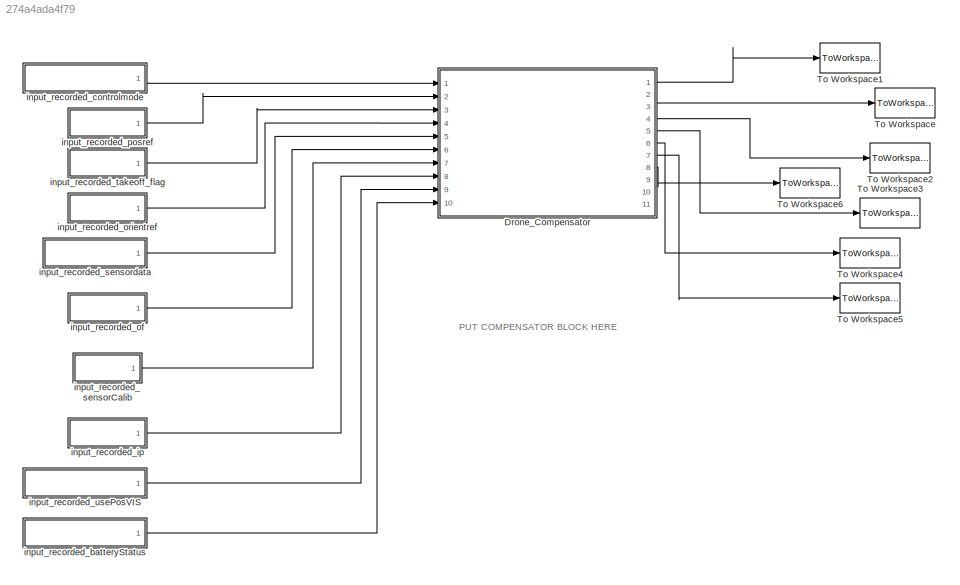
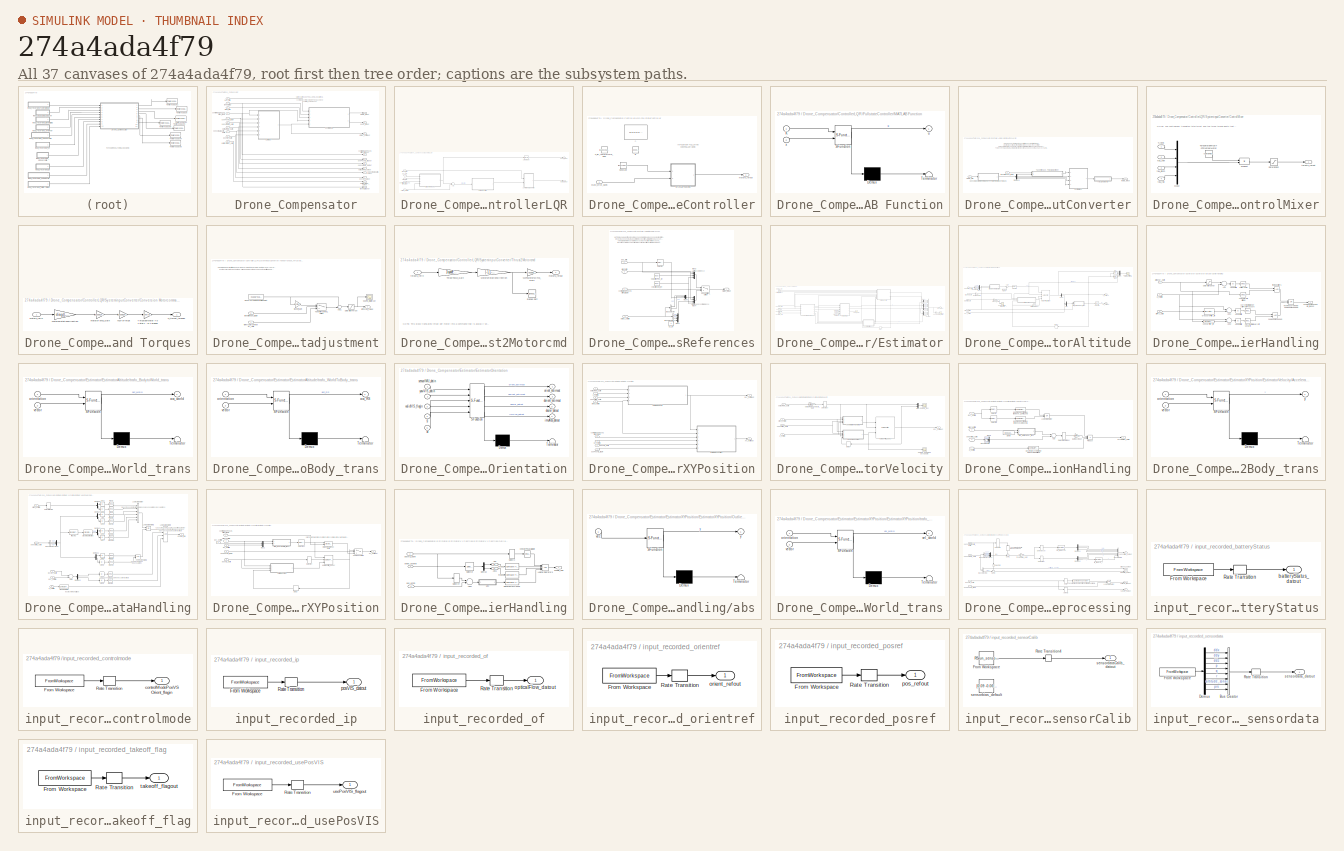
[diagram: thumbnail index - all 37 canvases of the model, root first then tree order]
MODEL slx_274a4ada4f79
KIND model
CONFIG AbsTol = auto
CONFIG EnableMultiTasking = on
CONFIG FixedStep = 0.005
CONFIG InitFcn = % load parameters of the default quadrotor\ndisp('Quadrotor parameters loaded by InitFcn')\nparameters_estimationcontrol %load mdl_quadcopter as well!\n\n% change to Simulation folder if in data folder\n%cd([matlabpath '/Simulation']);
CONFIG MaxStep = auto
CONFIG MinStep = auto
CONFIG RelTol = 1e-3
CONFIG SampleTimeConstraint = Unconstrained
CONFIG Solver = ode3
CONFIG SolverName = ode3
CONFIG StartTime = 0.0
CONFIG StopTime = 40
BLOCK [SubSystem] Drone_Compensator
  Ports = [10, 11]
  RTWSystemCode = Reusable function
  RequestExecContextInheritance = off
  TreatAsAtomicUnit = on
BLOCK [SubSystem] Drone_Compensator/ControllerLQR
  Ports = [5, 2]
  RTWSystemCode = Reusable function
  RequestExecContextInheritance = off
  TreatAsAtomicUnit = on
BLOCK [Sum] Drone_Compensator/ControllerLQR/Add
  InputSameDT = off
  Inputs = -+
  OutDataTypeStr = Inherit: Inherit via internal rule
  Ports = [2, 1]
  SaturateOnIntegerOverflow = off
BLOCK [SubSystem] Drone_Compensator/ControllerLQR/FullstateController
  Ports = [1, 1]
  RequestExecContextInheritance = off
BLOCK [Constant] Drone_Compensator/ControllerLQR/FullstateController/A 
  Value = [0	0	0	0	0	0	1.00000000000000	0	0	0	0	0\n0	0	0	0	0	0	0	1.00000000000000	0	0	0	0\n0	0	0	0	0	0	0	0	1.00000000000000	0	0	0\n0	0	0	0	0	0	0	0	0	0	0	1.00000000000000\n0	0	0	0	0	0	0	0	0	0	1.00000000000000	0\n0	0	0	0	0	0	0	0	0	1.00000000000000	0	0\n0	0	0	0	-9.80999999983650	0	-0.0644051820480064	0	0	0	0.139009950032610	0\n0	0	0	0	0	9.80999999983650	3.94368000217969e-18	-0.0644051820480064	0	-0.139009950032610	-6...<+238ch>
  VectorParams1D = off
BLOCK [Constant] Drone_Compensator/ControllerLQR/FullstateController/B
  Value = [0	0	0	0\n0	0	0	0\n0	0	0	0\n0	0	0	0\n0	0	0	0\n0	0	0	0\n0	0	0	0\n0	0	0	0\n-0.00960712392230772	0.00960712392230772	-0.00960712392230772	0.00960712392213385\n0.420192001834280	0.420192001834280	-0.420192001834280	-0.420192001834280\n0.313317079628604	-0.313317079628604	-0.313317079628604	0.313317079628604\n-0.0115436310307942	-0.0115436310307942	-0.0115436310307942	-0.0115436310307942]
  VectorParams1D = off
BLOCK [Constant] Drone_Compensator/ControllerLQR/FullstateController/Constant
  Value = [-8.49718577324068	8.49718577324278	-25.4915573197690	-35.4049407217802	90.0682783196400	89.1568450104141	-11.6214164668536	11.5626871891982	-36.4857972458732	26.1882849112338	26.8528174312964	-44.1008245485000\n8.49718577324076	8.49718577324069	25.4915573196879	-35.4049407219011	-90.0682783196407	89.1568450104006	11.6214164668537	11.5626871892001	36.4857972458205	26.1882849112264	-26.8528174312965...<+445ch>
  VectorParams1D = off
BLOCK [Constant] Drone_Compensator/ControllerLQR/FullstateController/K_lqr_toMotorcmd_slow
  Value = [-11.3010583936794	11.3010583936810	-11.3010583936898	-47.0877433069619	118.606403302530	117.689229642168	-15.5706954566703	15.5112876366907	-24.4160285913130	34.5954570321764	35.2626383735406	-53.8321197902419\n11.3010583936794	11.3010583936790	11.3010583936727	-47.0877433070400	-118.606403302531	117.689229642160	15.5706954566704	15.5112876366922	24.4160285913003	34.5954570321714	-35.2626383735406...<+445ch>
  VectorParams1D = off
BLOCK [SubSystem] Drone_Compensator/ControllerLQR/FullstateController/MATLAB Function
  ErrorFcn = Stateflow.Translate.translate
  PermitHierarchicalResolution = ExplicitOnly
  Ports = [2, 1]
  RequestExecContextInheritance = off
  SFBlockType = MATLAB Function
  TreatAsAtomicUnit = on
BLOCK [Demux] Drone_Compensator/ControllerLQR/FullstateController/MATLAB Function/ Demux 
  Outputs = 1
  Ports = [1, 1]
BLOCK [S-Function] Drone_Compensator/ControllerLQR/FullstateController/MATLAB Function/ SFunction 
  EnableBusSupport = on
  FunctionName = sf_sfun
  PortCounts = [2 2]
  Ports = [2, 2]
  SFcnIsStateOwnerBlock = off
  SFunctionDeploymentMode = off
  Tag = Stateflow S-Function sim_SoftwareIntheLoop_Compensator 2
BLOCK [Terminator] Drone_Compensator/ControllerLQR/FullstateController/MATLAB Function/ Terminator 
BLOCK [Inport] Drone_Compensator/ControllerLQR/FullstateController/MATLAB Function/K
  IconDisplay = Port number
BLOCK [Outport] Drone_Compensator/ControllerLQR/FullstateController/MATLAB Function/u
  IconDisplay = Port number
BLOCK [Inport] Drone_Compensator/ControllerLQR/FullstateController/MATLAB Function/x
  IconDisplay = Port number
  Port = 2
BLOCK [Outport] Drone_Compensator/ControllerLQR/FullstateController/motors_refout
  IconDisplay = Port number
BLOCK [Inport] Drone_Compensator/ControllerLQR/FullstateController/state_error_datin
  IconDisplay = Port number
BLOCK [Selector] Drone_Compensator/ControllerLQR/Select pose
  IndexOptions = Index vector (dialog)
  Indices = [1:6]
  InputPortWidth = 12
  OutputSizes = 1
  Ports = [1, 1]
BLOCK [SubSystem] Drone_Compensator/ControllerLQR/SysteminputConverter
  Ports = [2, 1]
  RequestExecContextInheritance = off
BLOCK [SubSystem] Drone_Compensator/ControllerLQR/SysteminputConverter/ControlMixer
  Ports = [4, 1]
  RequestExecContextInheritance = off
BLOCK [Mux] Drone_Compensator/ControllerLQR/SysteminputConverter/ControlMixer/Mux2
  DisplayOption = bar
  Ports = [4, 1]
BLOCK [Product] Drone_Compensator/ControllerLQR/SysteminputConverter/ControlMixer/Product
  InputSameDT = off
  Multiplication = Matrix(*)
  OutDataTypeStr = Inherit: Inherit via internal rule
  Ports = [2, 1]
  SaturateOnIntegerOverflow = off
BLOCK [Saturate] Drone_Compensator/ControllerLQR/SysteminputConverter/ControlMixer/Saturation2
  InputPortMap = u0
  LowerLimit = -controlHelperParams.motorsThrustperMotor_max
  Ports = [1, 1]
  UpperLimit = -0.05*controlHelperParams.motorsThrustperMotor_max
BLOCK [Inport] Drone_Compensator/ControllerLQR/SysteminputConverter/ControlMixer/T_refin
  IconDisplay = Port number
BLOCK [Constant] Drone_Compensator/ControllerLQR/SysteminputConverter/ControlMixer/TorquetotalThrustToThrustperMotor
  Value = controlHelperParams.Q2Ts
BLOCK [Inport] Drone_Compensator/ControllerLQR/SysteminputConverter/ControlMixer/tau_pitch
  IconDisplay = Port number
  Port = 3
BLOCK [Inport] Drone_Compensator/ControllerLQR/SysteminputConverter/ControlMixer/tau_roll
  IconDisplay = Port number
  Port = 4
BLOCK [Inport] Drone_Compensator/ControllerLQR/SysteminputConverter/ControlMixer/tau_yaw
  IconDisplay = Port number
  Port = 2
BLOCK [Outport] Drone_Compensator/ControllerLQR/SysteminputConverter/ControlMixer/thrusts_refout
  IconDisplay = Port number
BLOCK [SubSystem] Drone_Compensator/ControllerLQR/SysteminputConverter/Conversion Motorcommands To TotalThrust and Torques
  Ports = [1, 1]
  RequestExecContextInheritance = off
BLOCK [Gain] Drone_Compensator/ControllerLQR/SysteminputConverter/Conversion Motorcommands To TotalThrust and Torques/MotorsRotationDirection
  Gain = diag([-1,1,-1,1])
  Multiplication = Matrix(K*u)
  OutDataTypeStr = Inherit: Inherit via internal rule
  ParamDataTypeStr = Inherit: Inherit via internal rule
  SaturateOnIntegerOverflow = off
BLOCK [Gain] Drone_Compensator/ControllerLQR/SysteminputConverter/Conversion Motorcommands To TotalThrust and Torques/ThrustperMotor To TotalThrust and Torques
  Gain = controlHelperParams.Ts2Q
  Multiplication = Matrix(K*u)
  OutDataTypeStr = Inherit: Inherit via internal rule
  ParamDataTypeStr = Inherit: Inherit via internal rule
  SaturateOnIntegerOverflow = off
BLOCK [Gain] Drone_Compensator/ControllerLQR/SysteminputConverter/Conversion Motorcommands To TotalThrust and Torques/W2ToThrust
  Gain = quadEDT.w2ToThrust_gain
  OutDataTypeStr = Inherit: Inherit via internal rule
  ParamDataTypeStr = Inherit: Inherit via internal rule
  SaturateOnIntegerOverflow = off
BLOCK [Gain] Drone_Compensator/ControllerLQR/SysteminputConverter/Conversion Motorcommands To TotalThrust and Torques/motorsToW2_Gain
  Gain = quadEDT.motorcommandToW2_gain
  OutDataTypeStr = Inherit: Inherit via internal rule
  ParamDataTypeStr = Inherit: Inherit via internal rule
  SaturateOnIntegerOverflow = off
BLOCK [Inport] Drone_Compensator/ControllerLQR/SysteminputConverter/Conversion Motorcommands To TotalThrust and Torques/motors_refin
  IconDisplay = Port number
BLOCK [Outport] Drone_Compensator/ControllerLQR/SysteminputConverter/Conversion Motorcommands To TotalThrust and Torques/u_tthrust_torques
  IconDisplay = Port number
BLOCK [Demux] Drone_Compensator/ControllerLQR/SysteminputConverter/Demux3
  DisplayOption = bar
  Ports = [1, 4]
BLOCK [SubSystem] Drone_Compensator/ControllerLQR/SysteminputConverter/Takeoffphase_Thrustadjustment
  Ports = [2, 1]
  RequestExecContextInheritance = off
BLOCK [Sum] Drone_Compensator/ControllerLQR/SysteminputConverter/Takeoffphase_Thrustadjustment/Add1
  IconShape = round
  InputSameDT = off
  Inputs = ++|
  OutDataTypeStr = Inherit: Inherit via internal rule
  Ports = [2, 1]
  SaturateOnIntegerOverflow = off
BLOCK [Constant] Drone_Compensator/ControllerLQR/SysteminputConverter/Takeoffphase_Thrustadjustment/HoverThrustLinearizationPoint
  Value = -quad.g*quad.M
BLOCK [Scope] Drone_Compensator/ControllerLQR/SysteminputConverter/Takeoffphase_Thrustadjustment/SCOPE_totalthrust 
  Floating = off
  NumInputPorts = 1
  Ports = [1]
  ScopeSpecificationString = C++SS(StrPVP('Location','[259, 384, 1048, 714]'),StrPVP('Open','off'),StrPVP('ZoomMode','yonly'),MxPVP('AxesTitles',53,'struct(''axes1'',''%<SignalLabel>'')'),MxPVP('ScopeGraphics',56,'struct(''FigureColor'',''[0.5 0.5 0.5]'',''AxesColor'',''[0 0 0]'',''AxesTickColor'',''[1 1 1]'',''LineColors'',''[1 1 0;1 0 1;0 1 1;1 0 0;0 1 0;0 0 1]'',''LineStyles'',''-|-|-|-|-|-'',''LineWidths'',''[0.5 0.5 0.5 ...<+192ch>
BLOCK [Saturate] Drone_Compensator/ControllerLQR/SysteminputConverter/Takeoffphase_Thrustadjustment/SaturationThrust
  InputPortMap = u0
  LowerLimit = -controlHelperParams.totalThrust_maxRelative*controlHelperParams.motorsThrustperMotor_max*4
  Ports = [1, 1]
  UpperLimit = controlHelperParams.totalThrust_maxRelative*controlHelperParams.motorsThrustperMotor_max*4
BLOCK [Switch] Drone_Compensator/ControllerLQR/SysteminputConverter/Takeoffphase_Thrustadjustment/TakeoffOrControl_Switch
  Criteria = u2 > Threshold
  InputSameDT = off
  SaturateOnIntegerOverflow = off
BLOCK [Gain] Drone_Compensator/ControllerLQR/SysteminputConverter/Takeoffphase_Thrustadjustment/takeoff_gain
  Gain = controlHelperParams.takeoff_gain
  OutDataTypeStr = Inherit: Inherit via internal rule
  ParamDataTypeStr = Inherit: Inherit via internal rule
  SaturateOnIntegerOverflow = off
BLOCK [Inport] Drone_Compensator/ControllerLQR/SysteminputConverter/Takeoffphase_Thrustadjustment/takeoffphase_flagin
  IconDisplay = Port number
BLOCK [Outport] Drone_Compensator/ControllerLQR/SysteminputConverter/Takeoffphase_Thrustadjustment/totThrust_refout
  IconDisplay = Port number
BLOCK [Inport] Drone_Compensator/ControllerLQR/SysteminputConverter/Takeoffphase_Thrustadjustment/totThrustbyController_refin
  IconDisplay = Port number
  Port = 2
BLOCK [SubSystem] Drone_Compensator/ControllerLQR/SysteminputConverter/Thrust2Motorcmd
  Ports = [1, 1]
  RequestExecContextInheritance = off
BLOCK [Gain] Drone_Compensator/ControllerLQR/SysteminputConverter/Thrust2Motorcmd/MotorsRotationDirection
  Gain = [-1,1,-1,1]
  OutDataTypeStr = Inherit: Inherit via internal rule
  ParamDataTypeStr = Inherit: Inherit via internal rule
  SaturateOnIntegerOverflow = off
BLOCK [Sqrt] Drone_Compensator/ControllerLQR/SysteminputConverter/Thrust2Motorcmd/Signed Sqrt
  Operator = signedSqrt
BLOCK [Gain] Drone_Compensator/ControllerLQR/SysteminputConverter/Thrust2Motorcmd/ThrustToW2_Gain
  Gain = 1/quadEDT.w2ToThrust_gain
  OutDataTypeStr = Inherit: Inherit via internal rule
  ParamDataTypeStr = Inherit: Inherit via internal rule
  SaturateOnIntegerOverflow = off
BLOCK [Gain] Drone_Compensator/ControllerLQR/SysteminputConverter/Thrust2Motorcmd/W2ToMotorsCmd_Gain
  Gain = 1/quadEDT.motorcommandToW2_gain
  OutDataTypeStr = Inherit: Inherit via internal rule
  ParamDataTypeStr = Inherit: Inherit via internal rule
  SaturateOnIntegerOverflow = off
BLOCK [Outport] Drone_Compensator/ControllerLQR/SysteminputConverter/Thrust2Motorcmd/motors_refout
  IconDisplay = Port number
BLOCK [Inport] Drone_Compensator/ControllerLQR/SysteminputConverter/Thrust2Motorcmd/thrusts_refin
  IconDisplay = Port number
BLOCK [Inport] Drone_Compensator/ControllerLQR/SysteminputConverter/motors_refin
  IconDisplay = Port number
  Port = 2
BLOCK [Outport] Drone_Compensator/ControllerLQR/SysteminputConverter/motors_refout
  IconDisplay = Port number
BLOCK [Inport] Drone_Compensator/ControllerLQR/SysteminputConverter/takeoffphase_flagin
  IconDisplay = Port number
BLOCK [Inport] Drone_Compensator/ControllerLQR/controlModePosVSOrient_flagin
  IconDisplay = Port number
  Port = 4
BLOCK [Outport] Drone_Compensator/ControllerLQR/motors_refout
  IconDisplay = Port number
BLOCK [Inport] Drone_Compensator/ControllerLQR/orient_refin
  IconDisplay = Port number
  Port = 3
BLOCK [Inport] Drone_Compensator/ControllerLQR/pos_refin
  IconDisplay = Port number
BLOCK [Outport] Drone_Compensator/ControllerLQR/pose_refout
  IconDisplay = Port number
  Port = 2
BLOCK [SubSystem] Drone_Compensator/ControllerLQR/statesReferences
  Ports = [4, 1]
  RequestExecContextInheritance = off
BLOCK [BusSelector] Drone_Compensator/ControllerLQR/statesReferences/Bus Selector
  OutputAsBus = off
  OutputSignals = X,Y
  Ports = [1, 2]
BLOCK [BusSelector] Drone_Compensator/ControllerLQR/statesReferences/Bus Selector1
  OutputAsBus = off
  OutputSignals = dx,dy
  Ports = [1, 2]
BLOCK [Mux] Drone_Compensator/ControllerLQR/statesReferences/Mux1
  DisplayOption = bar
  Inputs = 3
  Ports = [3, 1]
BLOCK [Mux] Drone_Compensator/ControllerLQR/statesReferences/Mux3
  DisplayOption = bar
  Ports = [4, 1]
BLOCK [Mux] Drone_Compensator/ControllerLQR/statesReferences/Mux4
  DisplayOption = bar
  Ports = [4, 1]
BLOCK [Mux] Drone_Compensator/ControllerLQR/statesReferences/Mux5
  DisplayOption = bar
  Inputs = 3
  Ports = [3, 1]
BLOCK [Switch] Drone_Compensator/ControllerLQR/statesReferences/PosVSOrient_Switch
  Criteria = u2 > Threshold
  InputSameDT = off
  SaturateOnIntegerOverflow = off
BLOCK [Selector] Drone_Compensator/ControllerLQR/statesReferences/Selector
  IndexOptions = Index vector (dialog)
  Indices = [3]
  InputPortWidth = 3
  OutputSizes = 1
  Ports = [1, 1]
BLOCK [Inport] Drone_Compensator/ControllerLQR/statesReferences/controlModePosVSOrient_flagin
  IconDisplay = Port number
  Port = 3
BLOCK [Constant] Drone_Compensator/ControllerLQR/statesReferences/dz_ref
  Value = 0
BLOCK [Inport] Drone_Compensator/ControllerLQR/statesReferences/orient_refin
  IconDisplay = Port number
  Port = 2
BLOCK [Inport] Drone_Compensator/ControllerLQR/statesReferences/pos_refin
  IconDisplay = Port number
BLOCK [Inport] Drone_Compensator/ControllerLQR/statesReferences/states_estimin
  IconDisplay = Port number
  Port = 4
BLOCK [Outport] Drone_Compensator/ControllerLQR/statesReferences/states_refout
  IconDisplay = Port number
BLOCK [Constant] Drone_Compensator/ControllerLQR/statesReferences/velocitiesPos_ref
  Value = [0;0;0]
BLOCK [Constant] Drone_Compensator/ControllerLQR/statesReferences/velocitiesRot_ref
  Value = [0;0;0]
BLOCK [Inport] Drone_Compensator/ControllerLQR/states_estimin
  IconDisplay = Port number
  Port = 5
BLOCK [Inport] Drone_Compensator/ControllerLQR/takeoff_flag
  IconDisplay = Port number
  Port = 2
BLOCK [SubSystem] Drone_Compensator/Estimator
  Ports = [6, 1]
  RequestExecContextInheritance = off
BLOCK [BusCreator] Drone_Compensator/Estimator/Bus Creator
  DisplayOption = bar
  InheritFromInputs = on
  Inputs = 'X','Y','Z','yaw','pitch','roll','dx','dy','dz','p','q','r'
  Ports = [12, 1]
BLOCK [BusSelector] Drone_Compensator/Estimator/Bus Selector6
  OutputAsBus = on
  OutputSignals = yaw,pitch,roll
  Ports = [1, 1]
BLOCK [Delay] Drone_Compensator/Estimator/Delay1
  DelayLength = 1
  InitialCondition = 0
  InputPortMap = u0
  Ports = [1, 1]
BLOCK [Demux] Drone_Compensator/Estimator/Demux
  DisplayOption = bar
  Outputs = 3
  Ports = [1, 3]
BLOCK [Demux] Drone_Compensator/Estimator/Demux1
  DisplayOption = bar
  Outputs = 3
  Ports = [1, 3]
BLOCK [Demux] Drone_Compensator/Estimator/Demux3
  DisplayOption = bar
  Outputs = 2
  Ports = [1, 2]
BLOCK [Demux] Drone_Compensator/Estimator/Demux4
  DisplayOption = bar
  Outputs = 2
  Ports = [1, 2]
BLOCK [SubSystem] Drone_Compensator/Estimator/EstimatorAltitude
  Ports = [5, 2]
  RequestExecContextInheritance = off
BLOCK [Bias] Drone_Compensator/Estimator/EstimatorAltitude/Bias
  Bias = estimParams.alt.deltaSonarToCurrent_max
  SaturateOnIntegerOverflow = off
BLOCK [Bias] Drone_Compensator/Estimator/EstimatorAltitude/Bias1
  Bias = -estimParams.alt.deltaSonarToCurrent_max
  SaturateOnIntegerOverflow = off
BLOCK [BusSelector] Drone_Compensator/Estimator/EstimatorAltitude/Bus Selector2
  OutputAsBus = off
  OutputSignals = ddx,ddy,ddz
  Ports = [1, 3]
BLOCK [Delay] Drone_Compensator/Estimator/EstimatorAltitude/Delay2
  DelayLength = 1
  InitialCondition = 0
  InputPortMap = u0
  Ports = [1, 1]
BLOCK [Demux] Drone_Compensator/Estimator/EstimatorAltitude/Demux
  DisplayOption = bar
  Outputs = 2
  Ports = [1, 2]
BLOCK [Reference] Drone_Compensator/Estimator/EstimatorAltitude/KalmanFilter_altitude  REF=ctrlSharedLib/Kalman Filter
  Ports = [4, 1]
  SourceBlock = ctrlSharedLib/Kalman Filter
  SourceProductBaseCode = CT
  SourceProductName = Control System Toolbox
  SourceType = ctrlKalmanFilter
BLOCK [Mux] Drone_Compensator/Estimator/EstimatorAltitude/Mux
  DisplayOption = bar
  Inputs = 2
  Ports = [2, 1]
BLOCK [Mux] Drone_Compensator/Estimator/EstimatorAltitude/Mux1
  DisplayOption = bar
  Ports = [4, 1]
BLOCK [Mux] Drone_Compensator/Estimator/EstimatorAltitude/Mux2
  DisplayOption = bar
  Inputs = 3
  Ports = [3, 1]
BLOCK [SubSystem] Drone_Compensator/Estimator/EstimatorAltitude/OutlierHandling
  Ports = [3, 1]
  RequestExecContextInheritance = off
BLOCK [Abs] Drone_Compensator/Estimator/EstimatorAltitude/OutlierHandling/Absestdiff
  SaturateOnIntegerOverflow = off
BLOCK [Abs] Drone_Compensator/Estimator/EstimatorAltitude/OutlierHandling/Absestdiff1
  SaturateOnIntegerOverflow = off
BLOCK [Abs] Drone_Compensator/Estimator/EstimatorAltitude/OutlierHandling/Absestdiff2
  SaturateOnIntegerOverflow = off
BLOCK [Sum] Drone_Compensator/Estimator/EstimatorAltitude/OutlierHandling/Add
  InputSameDT = off
  Inputs = -+
  OutDataTypeStr = Inherit: Inherit via internal rule
  Ports = [2, 1]
  SaturateOnIntegerOverflow = off
BLOCK [Sum] Drone_Compensator/Estimator/EstimatorAltitude/OutlierHandling/Add1
  InputSameDT = off
  Inputs = -+
  OutDataTypeStr = Inherit: Inherit via internal rule
  Ports = [2, 1]
  SaturateOnIntegerOverflow = off
BLOCK [Sum] Drone_Compensator/Estimator/EstimatorAltitude/OutlierHandling/Add2
  InputSameDT = off
  Inputs = -+
  OutDataTypeStr = Inherit: Inherit via internal rule
  Ports = [2, 1]
  SaturateOnIntegerOverflow = off
BLOCK [Saturate] Drone_Compensator/Estimator/EstimatorAltitude/OutlierHandling/SaturationSonar
  InputPortMap = u0
  LowerLimit = -inf
  Ports = [1, 1]
  UpperLimit = -quadEDT.altSenor_min
BLOCK [Inport] Drone_Compensator/Estimator/EstimatorAltitude/OutlierHandling/Z_estimin
  IconDisplay = Port number
  Port = 3
BLOCK [Inport] Drone_Compensator/Estimator/EstimatorAltitude/OutlierHandling/altPrs_datin
  IconDisplay = Port number
  Port = 2
BLOCK [Inport] Drone_Compensator/Estimator/EstimatorAltitude/OutlierHandling/altSonar_datin
  IconDisplay = Port number
BLOCK [Reference] Drone_Compensator/Estimator/EstimatorAltitude/OutlierHandling/check for min altitude  REF=simulink/Logic and Bit
Operations/Compare
To Constant
  Ports = [1, 1]
  SourceBlock = simulink/Logic and Bit\nOperations/Compare\nTo Constant
  SourceProductBaseCode = SL
  SourceProductName = Simulink
  SourceType = Compare To Constant
BLOCK [Reference] Drone_Compensator/Estimator/EstimatorAltitude/OutlierHandling/currentEstimateVeryOffFromPressure  REF=simulink/Logic and Bit
Operations/Compare
To Constant
  Ports = [1, 1]
  SourceBlock = simulink/Logic and Bit\nOperations/Compare\nTo Constant
  SourceProductBaseCode = SL
  SourceProductName = Simulink
  SourceType = Compare To Constant
BLOCK [Reference] Drone_Compensator/Estimator/EstimatorAltitude/OutlierHandling/currentStateVeryOffsonarflt  REF=simulink/Logic and Bit
Operations/Compare
To Constant
  Ports = [1, 1]
  SourceBlock = simulink/Logic and Bit\nOperations/Compare\nTo Constant
  SourceProductBaseCode = SL
  SourceProductName = Simulink
  SourceType = Compare To Constant
BLOCK [Outport] Drone_Compensator/Estimator/EstimatorAltitude/OutlierHandling/enableKFmeasupdate_flagout
  IconDisplay = Port number
BLOCK [Logic] Drone_Compensator/Estimator/EstimatorAltitude/OutlierHandling/findingoutliers
  AllPortsSameDT = off
  OutDataTypeStr = boolean
  Ports = [2, 1]
BLOCK [Logic] Drone_Compensator/Estimator/EstimatorAltitude/OutlierHandling/newupdateneeded
  AllPortsSameDT = off
  OutDataTypeStr = boolean
  Ports = [2, 1]
BLOCK [Logic] Drone_Compensator/Estimator/EstimatorAltitude/OutlierHandling/nicemeasurementor newupdateneeded
  AllPortsSameDT = off
  Operator = OR
  OutDataTypeStr = boolean
  Ports = [2, 1]
BLOCK [Reference] Drone_Compensator/Estimator/EstimatorAltitude/OutlierHandling/outlierJump  REF=simulink/Logic and Bit
Operations/Compare
To Constant
  Ports = [1, 1]
  SourceBlock = simulink/Logic and Bit\nOperations/Compare\nTo Constant
  SourceProductBaseCode = SL
  SourceProductName = Simulink
  SourceType = Compare To Constant
BLOCK [DiscreteFilter] Drone_Compensator/Estimator/EstimatorAltitude/OutlierHandling/pressureFilter_IIR
  Denominator = estimParams.alt.filter_prs_a
  InputPortMap = u0
  Numerator = estimParams.alt.filter_prs_b
  Ports = [1, 1]
BLOCK [DiscreteFilter] Drone_Compensator/Estimator/EstimatorAltitude/OutlierHandling/soonarFilter_IIR
  Denominator = estimParams.alt.filter_sonar_a
  InputPortMap = u0
  Numerator = estimParams.alt.filter_sonar_b
  Ports = [1, 1]
BLOCK [Scope] Drone_Compensator/Estimator/EstimatorAltitude/SCOPE_altitude_Kalmanestimate
  Floating = off
  NumInputPorts = 1
  Ports = [1]
  ScopeSpecificationString = C++SS(StrPVP('Location','[48, 696, 1921, 1189]'),StrPVP('Open','off'),StrPVP('ZoomMode','yonly'),MxPVP('AxesTitles',53,'struct(''axes1'',''%<SignalLabel>'')'),MxPVP('ScopeGraphics',56,'struct(''FigureColor'',''[0.5 0.5 0.5]'',''AxesColor'',''[0 0 0]'',''AxesTickColor'',''[1 1 1]'',''LineColors'',''[1 1 0;1 0 1;0 1 1;1 0 0;0 1 0;0 0 1]'',''LineStyles'',''-|-|-|-|-|-'',''LineWidths'',''[0.5 0.5 0.5 ...<+269ch>
BLOCK [Scope] Drone_Compensator/Estimator/EstimatorAltitude/SCOPE_altitude_pressure
  Floating = off
  NumInputPorts = 1
  Ports = [1]
  ScopeSpecificationString = Simulink.scopes.TimeScopeBlockCfg('CurrentConfiguration', extmgr.ConfigurationSet(extmgr.Configuration('Core','General UI',true),extmgr.Configuration('Core','Source UI',true),extmgr.Configuration('Sources','WiredSimulink',true,'DataLoggingVariableName','ScopeData9','DataLoggingLimitDataPoints',true,'DataLoggingSaveFormat','Array','DataLoggingDecimation','1','DataLoggingDecimateData',true),extmgr.C...<+1733ch>
BLOCK [Selector] Drone_Compensator/Estimator/EstimatorAltitude/Selector4
  IndexOptions = Index vector (dialog)
  Indices = [3]
  InputPortWidth = 3
  OutputSizes = 1
  Ports = [1, 1]
BLOCK [Selector] Drone_Compensator/Estimator/EstimatorAltitude/Selector5
  IndexOptions = Index vector (dialog)
  Indices = [3]
  InputPortWidth = 3
  OutputSizes = 1
  Ports = [1, 1]
BLOCK [Sum] Drone_Compensator/Estimator/EstimatorAltitude/Sum
  IconShape = round
  InputSameDT = off
  Inputs = |++
  OutDataTypeStr = Inherit: Inherit via internal rule
  Ports = [2, 1]
  SaturateOnIntegerOverflow = off
BLOCK [Outport] Drone_Compensator/Estimator/EstimatorAltitude/Z_estimout
  IconDisplay = Port number
  Port = 2
BLOCK [Inport] Drone_Compensator/Estimator/EstimatorAltitude/altSonar_datin
  IconDisplay = Port number
  Port = 3
BLOCK [Inport] Drone_Compensator/Estimator/EstimatorAltitude/dxy_estimin
  IconDisplay = Port number
  Port = 5
BLOCK [Outport] Drone_Compensator/Estimator/EstimatorAltitude/dz_estimout
  IconDisplay = Port number
BLOCK [Constant] Drone_Compensator/Estimator/EstimatorAltitude/gravity
  Value = [0 0 quad.g]
BLOCK [Gain] Drone_Compensator/Estimator/EstimatorAltitude/invertzaxisGain
  Gain = -1
  OutDataTypeStr = Inherit: Inherit via internal rule
  ParamDataTypeStr = Inherit: Inherit via internal rule
  SaturateOnIntegerOverflow = off
BLOCK [Inport] Drone_Compensator/Estimator/EstimatorAltitude/orient_estimin
  IconDisplay = Port number
BLOCK [Reference] Drone_Compensator/Estimator/EstimatorAltitude/outlierBelowFloor  REF=simulink/Logic and Bit
Operations/Compare
To Constant
  Ports = [1, 1]
  SourceBlock = simulink/Logic and Bit\nOperations/Compare\nTo Constant
  SourceProductBaseCode = SL
  SourceProductName = Simulink
  SourceType = Compare To Constant
BLOCK [Inport] Drone_Compensator/Estimator/EstimatorAltitude/prsDelta_datin
  IconDisplay = Port number
  Port = 4
BLOCK [Gain] Drone_Compensator/Estimator/EstimatorAltitude/prsToAlt_gain
  Gain = 1/quadEDT.altToPrs_gain
  OutDataTypeStr = Inherit: Inherit via internal rule
  ParamDataTypeStr = Inherit: Inherit via internal rule
  SaturateOnIntegerOverflow = off
BLOCK [Inport] Drone_Compensator/Estimator/EstimatorAltitude/sensorIMU_datin
  IconDisplay = Port number
  Port = 2
BLOCK [SubSystem] Drone_Compensator/Estimator/EstimatorAltitude/trafo_BodytoWorld_trans
  ErrorFcn = Stateflow.Translate.translate
  PermitHierarchicalResolution = ExplicitOnly
  Ports = [2, 1]
  RequestExecContextInheritance = off
  SFBlockType = MATLAB Function
  TreatAsAtomicUnit = on
BLOCK [Demux] Drone_Compensator/Estimator/EstimatorAltitude/trafo_BodytoWorld_trans/ Demux 
  Outputs = 1
  Ports = [1, 1]
BLOCK [S-Function] Drone_Compensator/Estimator/EstimatorAltitude/trafo_BodytoWorld_trans/ SFunction 
  EnableBusSupport = on
  FunctionName = sf_sfun
  PortCounts = [2 2]
  Ports = [2, 2]
  SFcnIsStateOwnerBlock = off
  SFunctionDeploymentMode = off
  Tag = Stateflow S-Function sim_SoftwareIntheLoop_Compensator 16
BLOCK [Terminator] Drone_Compensator/Estimator/EstimatorAltitude/trafo_BodytoWorld_trans/ Terminator 
BLOCK [Outport] Drone_Compensator/Estimator/EstimatorAltitude/trafo_BodytoWorld_trans/acc_world
  IconDisplay = Port number
BLOCK [Inport] Drone_Compensator/Estimator/EstimatorAltitude/trafo_BodytoWorld_trans/orientation
  IconDisplay = Port number
BLOCK [Inport] Drone_Compensator/Estimator/EstimatorAltitude/trafo_BodytoWorld_trans/vector
  IconDisplay = Port number
  Port = 2
BLOCK [SubSystem] Drone_Compensator/Estimator/EstimatorAltitude/trafo_WorldToBody_trans
  ErrorFcn = Stateflow.Translate.translate
  PermitHierarchicalResolution = ExplicitOnly
  Ports = [2, 1]
  RequestExecContextInheritance = off
  SFBlockType = MATLAB Function
  TreatAsAtomicUnit = on
BLOCK [Demux] Drone_Compensator/Estimator/EstimatorAltitude/trafo_WorldToBody_trans/ Demux 
  Outputs = 1
  Ports = [1, 1]
BLOCK [S-Function] Drone_Compensator/Estimator/EstimatorAltitude/trafo_WorldToBody_trans/ SFunction 
  EnableBusSupport = on
  FunctionName = sf_sfun
  PortCounts = [2 2]
  Ports = [2, 2]
  SFcnIsStateOwnerBlock = off
  SFunctionDeploymentMode = off
  Tag = Stateflow S-Function sim_SoftwareIntheLoop_Compensator 17
BLOCK [Terminator] Drone_Compensator/Estimator/EstimatorAltitude/trafo_WorldToBody_trans/ Terminator 
BLOCK [Outport] Drone_Compensator/Estimator/EstimatorAltitude/trafo_WorldToBody_trans/acc_RS
  IconDisplay = Port number
BLOCK [Inport] Drone_Compensator/Estimator/EstimatorAltitude/trafo_WorldToBody_trans/orientation
  IconDisplay = Port number
BLOCK [Inport] Drone_Compensator/Estimator/EstimatorAltitude/trafo_WorldToBody_trans/vector
  IconDisplay = Port number
  Port = 2
BLOCK [SubSystem] Drone_Compensator/Estimator/EstimatorOrientation
  ErrorFcn = Stateflow.Translate.translate
  PermitHierarchicalResolution = ExplicitOnly
  Ports = [5, 4]
  RequestExecContextInheritance = off
  SFBlockType = MATLAB Function
  TreatAsAtomicUnit = on
BLOCK [Demux] Drone_Compensator/Estimator/EstimatorOrientation/ Demux 
  Outputs = 1
  Ports = [1, 1]
BLOCK [S-Function] Drone_Compensator/Estimator/EstimatorOrientation/ SFunction 
  EnableBusSupport = on
  FunctionName = sf_sfun
  PortCounts = [5 5]
  Ports = [5, 5]
  SFcnIsStateOwnerBlock = off
  SFunctionDeploymentMode = off
  Tag = Stateflow S-Function sim_SoftwareIntheLoop_Compensator 19
BLOCK [Terminator] Drone_Compensator/Estimator/EstimatorOrientation/ Terminator 
BLOCK [Outport] Drone_Compensator/Estimator/EstimatorOrientation/deuler_datout
  IconDisplay = Port number
  Port = 3
BLOCK [Outport] Drone_Compensator/Estimator/EstimatorOrientation/dorient_estimout
  IconDisplay = Port number
  Port = 2
BLOCK [Inport] Drone_Compensator/Estimator/EstimatorOrientation/dt
  IconDisplay = Port number
  Port = 5
BLOCK [Inport] Drone_Compensator/Estimator/EstimatorOrientation/g
  IconDisplay = Port number
  Port = 4
BLOCK [Outport] Drone_Compensator/Estimator/EstimatorOrientation/imuAbs_datout
  IconDisplay = Port number
  Port = 4
BLOCK [Outport] Drone_Compensator/Estimator/EstimatorOrientation/orient_estimout
  IconDisplay = Port number
BLOCK [Inport] Drone_Compensator/Estimator/EstimatorOrientation/sensorIMU_datin
  IconDisplay = Port number
BLOCK [Inport] Drone_Compensator/Estimator/EstimatorOrientation/validVIS_flagin
  IconDisplay = Port number
  Port = 3
BLOCK [Inport] Drone_Compensator/Estimator/EstimatorOrientation/yawVIS_datin
  IconDisplay = Port number
  Port = 2
BLOCK [SubSystem] Drone_Compensator/Estimator/EstimatorXYPosition
  Ports = [8, 2]
  RequestExecContextInheritance = off
BLOCK [SubSystem] Drone_Compensator/Estimator/EstimatorXYPosition/EstimatorVelocity
  Ports = [4, 1]
  RequestExecContextInheritance = off
BLOCK [SubSystem] Drone_Compensator/Estimator/EstimatorXYPosition/EstimatorVelocity/AccelerationHandling
  Ports = [4, 1]
  RequestExecContextInheritance = off
BLOCK [Sum] Drone_Compensator/Estimator/EstimatorXYPosition/EstimatorVelocity/AccelerationHandling/Add
  InputSameDT = off
  Inputs = -+
  OutDataTypeStr = Inherit: Inherit via internal rule
  Ports = [2, 1]
  SaturateOnIntegerOverflow = off
BLOCK [BusSelector] Drone_Compensator/Estimator/EstimatorXYPosition/EstimatorVelocity/AccelerationHandling/Bus Selector1
  OutputAsBus = off
  OutputSignals = ddx,ddy,ddz
  Ports = [1, 3]
BLOCK [Reference] Drone_Compensator/Estimator/EstimatorXYPosition/EstimatorVelocity/AccelerationHandling/Deactivate Acceleration If OF is not used due to low altitude  REF=simulink/Logic and Bit
Operations/Compare
To Constant
  Ports = [1, 1]
  SourceBlock = simulink/Logic and Bit\nOperations/Compare\nTo Constant
  SourceProductBaseCode = SL
  SourceProductName = Simulink
  SourceType = Compare To Constant
BLOCK [Logic] Drone_Compensator/Estimator/EstimatorXYPosition/EstimatorVelocity/AccelerationHandling/Logical Operator
  AllPortsSameDT = off
  Operator = OR
  OutDataTypeStr = boolean
  Ports = [2, 1]
BLOCK [Mux] Drone_Compensator/Estimator/EstimatorXYPosition/EstimatorVelocity/AccelerationHandling/Mux6
  DisplayOption = bar
  Inputs = 3
  Ports = [3, 1]
BLOCK [Product] Drone_Compensator/Estimator/EstimatorXYPosition/EstimatorVelocity/AccelerationHandling/Product
  InputSameDT = off
  Inputs = 3
  OutDataTypeStr = Inherit: Inherit via internal rule
  Ports = [3, 1]
  RndMeth = Floor
  SaturateOnIntegerOverflow = off
BLOCK [Selector] Drone_Compensator/Estimator/EstimatorXYPosition/EstimatorVelocity/AccelerationHandling/SelectPlanarddxy
  IndexOptions = Index vector (dialog)
  Indices = [1 2]
  InputPortWidth = 3
  OutputSizes = 1
  Ports = [1, 1]
BLOCK [Selector] Drone_Compensator/Estimator/EstimatorXYPosition/EstimatorVelocity/AccelerationHandling/Selector
  IndexOptions = Index vector (dialog)
  Indices = 1
  InputPortWidth = 2
  OutputSizes = 1
  Ports = [1, 1]
BLOCK [Selector] Drone_Compensator/Estimator/EstimatorXYPosition/EstimatorVelocity/AccelerationHandling/Selector1
  IndexOptions = Index vector (dialog)
  Indices = 2
  InputPortWidth = 2
  OutputSizes = 1
  Ports = [1, 1]
BLOCK [Inport] Drone_Compensator/Estimator/EstimatorXYPosition/EstimatorVelocity/AccelerationHandling/Z_estimin
  IconDisplay = Port number
  Port = 4
BLOCK [Outport] Drone_Compensator/Estimator/EstimatorXYPosition/EstimatorVelocity/AccelerationHandling/acceleration_world
  IconDisplay = Port number
BLOCK [Reference] Drone_Compensator/Estimator/EstimatorXYPosition/EstimatorVelocity/AccelerationHandling/do not use acc if optical flow never available (Note OF@60Hz but ZOH to 200!)  REF=simulink/Logic and Bit
Operations/Compare
To Constant
  Ports = [1, 1]
  SourceBlock = simulink/Logic and Bit\nOperations/Compare\nTo Constant
  SourceProductBaseCode = SL
  SourceProductName = Simulink
  SourceType = Compare To Constant
BLOCK [Reference] Drone_Compensator/Estimator/EstimatorXYPosition/EstimatorVelocity/AccelerationHandling/do not use acc if optical flow never available (Note OF@60Hz but ZOH to 200!)1  REF=simulink/Logic and Bit
Operations/Compare
To Constant
  Ports = [1, 1]
  SourceBlock = simulink/Logic and Bit\nOperations/Compare\nTo Constant
  SourceProductBaseCode = SL
  SourceProductName = Simulink
  SourceType = Compare To Constant
BLOCK [Inport] Drone_Compensator/Estimator/EstimatorXYPosition/EstimatorVelocity/AccelerationHandling/dxy_estimin
  IconDisplay = Port number
BLOCK [Gain] Drone_Compensator/Estimator/EstimatorXYPosition/EstimatorVelocity/AccelerationHandling/gainaccinput
  Gain = estimParams.pos.accelerationInput_gain
  OutDataTypeStr = Inherit: Inherit via internal rule
  ParamDataTypeStr = Inherit: Inherit via internal rule
  SaturateOnIntegerOverflow = off
BLOCK [Constant] Drone_Compensator/Estimator/EstimatorXYPosition/EstimatorVelocity/AccelerationHandling/gravity
  Value = [0 0 -quad.g]
BLOCK [Inport] Drone_Compensator/Estimator/EstimatorXYPosition/EstimatorVelocity/AccelerationHandling/orient_estimin
  IconDisplay = Port number
  Port = 2
BLOCK [Inport] Drone_Compensator/Estimator/EstimatorXYPosition/EstimatorVelocity/AccelerationHandling/sensorIMU_datin
  IconDisplay = Port number
  Port = 3
BLOCK [SubSystem] Drone_Compensator/Estimator/EstimatorXYPosition/EstimatorVelocity/AccelerationHandling/trafo_World2Body_trans
  ErrorFcn = Stateflow.Translate.translate
  PermitHierarchicalResolution = ExplicitOnly
  Ports = [2, 1]
  RequestExecContextInheritance = off
  SFBlockType = MATLAB Function
  TreatAsAtomicUnit = on
BLOCK [Demux] Drone_Compensator/Estimator/EstimatorXYPosition/EstimatorVelocity/AccelerationHandling/trafo_World2Body_trans/ Demux 
  Outputs = 1
  Ports = [1, 1]
BLOCK [S-Function] Drone_Compensator/Estimator/EstimatorXYPosition/EstimatorVelocity/AccelerationHandling/trafo_World2Body_trans/ SFunction 
  EnableBusSupport = on
  FunctionName = sf_sfun
  PortCounts = [2 2]
  Ports = [2, 2]
  SFcnIsStateOwnerBlock = off
  SFunctionDeploymentMode = off
  Tag = Stateflow S-Function sim_SoftwareIntheLoop_Compensator 8
BLOCK [Terminator] Drone_Compensator/Estimator/EstimatorXYPosition/EstimatorVelocity/AccelerationHandling/trafo_World2Body_trans/ Terminator 
BLOCK [Inport] Drone_Compensator/Estimator/EstimatorXYPosition/EstimatorVelocity/AccelerationHandling/trafo_World2Body_trans/orientation
  IconDisplay = Port number
BLOCK [Inport] Drone_Compensator/Estimator/EstimatorXYPosition/EstimatorVelocity/AccelerationHandling/trafo_World2Body_trans/vector
  IconDisplay = Port number
  Port = 2
BLOCK [Outport] Drone_Compensator/Estimator/EstimatorXYPosition/EstimatorVelocity/AccelerationHandling/trafo_World2Body_trans/y
  IconDisplay = Port number
BLOCK [Delay] Drone_Compensator/Estimator/EstimatorXYPosition/EstimatorVelocity/Delay
  DelayLength = 1
  InitialCondition = 0
  InputPortMap = u0
  Ports = [1, 1]
BLOCK [Reference] Drone_Compensator/Estimator/EstimatorXYPosition/EstimatorVelocity/KalmanFilter_dxdy  REF=ctrlSharedLib/Kalman Filter
  Ports = [3, 1]
  SourceBlock = ctrlSharedLib/Kalman Filter
  SourceProductBaseCode = CT
  SourceProductName = Control System Toolbox
  SourceType = ctrlKalmanFilter
BLOCK [Mux] Drone_Compensator/Estimator/EstimatorXYPosition/EstimatorVelocity/Mux
  DisplayOption = bar
  Inputs = 2
  Ports = [2, 1]
BLOCK [Scope] Drone_Compensator/Estimator/EstimatorXYPosition/EstimatorVelocity/SCOPE_dxy
  Floating = off
  NumInputPorts = 1
  Ports = [1]
  ScopeSpecificationString = C++SS(StrPVP('Location','[48, 534, 1886, 791]'),StrPVP('Open','off'),StrPVP('ZoomMode','yonly'),MxPVP('AxesTitles',53,'struct(''axes1'',''%<SignalLabel>'')'),MxPVP('ScopeGraphics',56,'struct(''FigureColor'',''[0.5 0.5 0.5]'',''AxesColor'',''[0 0 0]'',''AxesTickColor'',''[1 1 1]'',''LineColors'',''[1 1 0;1 0 1;0 1 1;1 0 0;0 1 0;0 0 1]'',''LineStyles'',''-|-|-|-|-|-'',''LineWidths'',''[0.5 0.5 0.5 0...<+257ch>
BLOCK [Scope] Drone_Compensator/Estimator/EstimatorXYPosition/EstimatorVelocity/SCOPE_enableKFdxyupdate
  Floating = off
  NumInputPorts = 1
  Ports = [1]
  ScopeSpecificationString = C++SS(StrPVP('Location','[39, 243, 1912, 486]'),StrPVP('Open','off'),StrPVP('ZoomMode','xonly'),MxPVP('AxesTitles',53,'struct(''axes1'',''%<SignalLabel>'')'),MxPVP('ScopeGraphics',56,'struct(''FigureColor'',''[0.5 0.5 0.5]'',''AxesColor'',''[0 0 0]'',''AxesTickColor'',''[1 1 1]'',''LineColors'',''[1 1 0;1 0 1;0 1 1;1 0 0;0 1 0;0 0 1]'',''LineStyles'',''-|-|-|-|-|-'',''LineWidths'',''[0.5 0.5 0.5 0...<+287ch>
BLOCK [Selector] Drone_Compensator/Estimator/EstimatorXYPosition/EstimatorVelocity/Select dxy
  IndexOptions = Index vector (dialog)
  Indices = [1 2]
  InputPortWidth = 3
  OutputSizes = 1
  Ports = [1, 1]
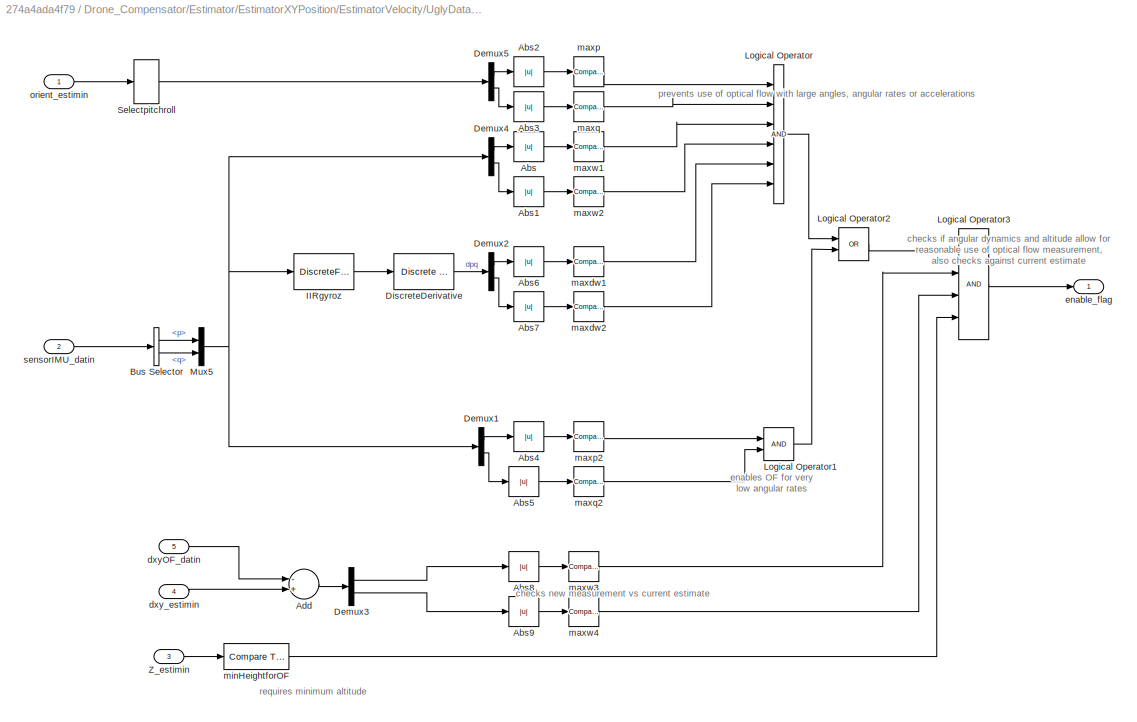
BLOCK [SubSystem] Drone_Compensator/Estimator/EstimatorXYPosition/EstimatorVelocity/UglyDataHandling
  Ports = [5, 1]
  RequestExecContextInheritance = off
BLOCK [Abs] Drone_Compensator/Estimator/EstimatorXYPosition/EstimatorVelocity/UglyDataHandling/Abs
  SaturateOnIntegerOverflow = off
BLOCK [Abs] Drone_Compensator/Estimator/EstimatorXYPosition/EstimatorVelocity/UglyDataHandling/Abs1
  SaturateOnIntegerOverflow = off
BLOCK [Abs] Drone_Compensator/Estimator/EstimatorXYPosition/EstimatorVelocity/UglyDataHandling/Abs2
  SaturateOnIntegerOverflow = off
BLOCK [Abs] Drone_Compensator/Estimator/EstimatorXYPosition/EstimatorVelocity/UglyDataHandling/Abs3
  SaturateOnIntegerOverflow = off
BLOCK [Abs] Drone_Compensator/Estimator/EstimatorXYPosition/EstimatorVelocity/UglyDataHandling/Abs4
  SaturateOnIntegerOverflow = off
BLOCK [Abs] Drone_Compensator/Estimator/EstimatorXYPosition/EstimatorVelocity/UglyDataHandling/Abs5
  SaturateOnIntegerOverflow = off
BLOCK [Abs] Drone_Compensator/Estimator/EstimatorXYPosition/EstimatorVelocity/UglyDataHandling/Abs6
  SaturateOnIntegerOverflow = off
BLOCK [Abs] Drone_Compensator/Estimator/EstimatorXYPosition/EstimatorVelocity/UglyDataHandling/Abs7
  SaturateOnIntegerOverflow = off
BLOCK [Abs] Drone_Compensator/Estimator/EstimatorXYPosition/EstimatorVelocity/UglyDataHandling/Abs8
  SaturateOnIntegerOverflow = off
BLOCK [Abs] Drone_Compensator/Estimator/EstimatorXYPosition/EstimatorVelocity/UglyDataHandling/Abs9
  SaturateOnIntegerOverflow = off
BLOCK [Sum] Drone_Compensator/Estimator/EstimatorXYPosition/EstimatorVelocity/UglyDataHandling/Add
  InputSameDT = off
  Inputs = -+
  OutDataTypeStr = Inherit: Inherit via internal rule
  Ports = [2, 1]
  SaturateOnIntegerOverflow = off
BLOCK [BusSelector] Drone_Compensator/Estimator/EstimatorXYPosition/EstimatorVelocity/UglyDataHandling/Bus Selector
  OutputAsBus = off
  OutputSignals = p,q
  Ports = [1, 2]
BLOCK [Demux] Drone_Compensator/Estimator/EstimatorXYPosition/EstimatorVelocity/UglyDataHandling/Demux1
  DisplayOption = bar
  Outputs = 2
  Ports = [1, 2]
BLOCK [Demux] Drone_Compensator/Estimator/EstimatorXYPosition/EstimatorVelocity/UglyDataHandling/Demux2
  DisplayOption = bar
  Outputs = 2
  Ports = [1, 2]
BLOCK [Demux] Drone_Compensator/Estimator/EstimatorXYPosition/EstimatorVelocity/UglyDataHandling/Demux3
  DisplayOption = bar
  Outputs = 2
  Ports = [1, 2]
BLOCK [Demux] Drone_Compensator/Estimator/EstimatorXYPosition/EstimatorVelocity/UglyDataHandling/Demux4
  DisplayOption = bar
  Outputs = 2
  Ports = [1, 2]
BLOCK [Demux] Drone_Compensator/Estimator/EstimatorXYPosition/EstimatorVelocity/UglyDataHandling/Demux5
  DisplayOption = bar
  Outputs = 2
  Ports = [1, 2]
BLOCK [Reference] Drone_Compensator/Estimator/EstimatorXYPosition/EstimatorVelocity/UglyDataHandling/DiscreteDerivative  REF=simulink/Discrete/Discrete Derivative
  Ports = [1, 1]
  SourceBlock = simulink/Discrete/Discrete Derivative
  SourceProductBaseCode = SL
  SourceProductName = Simulink
  SourceType = Discrete Derivative
BLOCK [DiscreteFilter] Drone_Compensator/Estimator/EstimatorXYPosition/EstimatorVelocity/UglyDataHandling/IIRgyroz
  Denominator = estimParams.IMU.filter_gyro_r_b
  InputPortMap = u0
  Numerator = estimParams.IMU.filter_gyro_r_b
  Ports = [1, 1]
BLOCK [Logic] Drone_Compensator/Estimator/EstimatorXYPosition/EstimatorVelocity/UglyDataHandling/Logical Operator
  AllPortsSameDT = off
  Inputs = 6
  OutDataTypeStr = boolean
  Ports = [6, 1]
BLOCK [Logic] Drone_Compensator/Estimator/EstimatorXYPosition/EstimatorVelocity/UglyDataHandling/Logical Operator1
  AllPortsSameDT = off
  OutDataTypeStr = boolean
  Ports = [2, 1]
BLOCK [Logic] Drone_Compensator/Estimator/EstimatorXYPosition/EstimatorVelocity/UglyDataHandling/Logical Operator2
  AllPortsSameDT = off
  Operator = OR
  OutDataTypeStr = boolean
  Ports = [2, 1]
BLOCK [Logic] Drone_Compensator/Estimator/EstimatorXYPosition/EstimatorVelocity/UglyDataHandling/Logical Operator3
  AllPortsSameDT = off
  Inputs = 4
  OutDataTypeStr = boolean
  Ports = [4, 1]
BLOCK [Mux] Drone_Compensator/Estimator/EstimatorXYPosition/EstimatorVelocity/UglyDataHandling/Mux5
  DisplayOption = bar
  Inputs = 2
  Ports = [2, 1]
BLOCK [Selector] Drone_Compensator/Estimator/EstimatorXYPosition/EstimatorVelocity/UglyDataHandling/Selectpitchroll
  IndexOptions = Index vector (dialog)
  Indices = [2 3]
  InputPortWidth = 3
  OutputSizes = 1
  Ports = [1, 1]
BLOCK [Inport] Drone_Compensator/Estimator/EstimatorXYPosition/EstimatorVelocity/UglyDataHandling/Z_estimin
  IconDisplay = Port number
  Port = 3
BLOCK [Inport] Drone_Compensator/Estimator/EstimatorXYPosition/EstimatorVelocity/UglyDataHandling/dxyOF_datin
  IconDisplay = Port number
  Port = 5
BLOCK [Inport] Drone_Compensator/Estimator/EstimatorXYPosition/EstimatorVelocity/UglyDataHandling/dxy_estimin
  IconDisplay = Port number
  Port = 4
BLOCK [Outport] Drone_Compensator/Estimator/EstimatorXYPosition/EstimatorVelocity/UglyDataHandling/enable_flag
  IconDisplay = Port number
BLOCK [Reference] Drone_Compensator/Estimator/EstimatorXYPosition/EstimatorVelocity/UglyDataHandling/maxdw1  REF=simulink/Logic and Bit
Operations/Compare
To Constant
  Ports = [1, 1]
  SourceBlock = simulink/Logic and Bit\nOperations/Compare\nTo Constant
  SourceProductBaseCode = SL
  SourceProductName = Simulink
  SourceType = Compare To Constant
BLOCK [Reference] Drone_Compensator/Estimator/EstimatorXYPosition/EstimatorVelocity/UglyDataHandling/maxdw2  REF=simulink/Logic and Bit
Operations/Compare
To Constant
  Ports = [1, 1]
  SourceBlock = simulink/Logic and Bit\nOperations/Compare\nTo Constant
  SourceProductBaseCode = SL
  SourceProductName = Simulink
  SourceType = Compare To Constant
BLOCK [Reference] Drone_Compensator/Estimator/EstimatorXYPosition/EstimatorVelocity/UglyDataHandling/maxp  REF=simulink/Logic and Bit
Operations/Compare
To Constant
  Ports = [1, 1]
  SourceBlock = simulink/Logic and Bit\nOperations/Compare\nTo Constant
  SourceProductBaseCode = SL
  SourceProductName = Simulink
  SourceType = Compare To Constant
BLOCK [Reference] Drone_Compensator/Estimator/EstimatorXYPosition/EstimatorVelocity/UglyDataHandling/maxp2  REF=simulink/Logic and Bit
Operations/Compare
To Constant
  Ports = [1, 1]
  SourceBlock = simulink/Logic and Bit\nOperations/Compare\nTo Constant
  SourceProductBaseCode = SL
  SourceProductName = Simulink
  SourceType = Compare To Constant
BLOCK [Reference] Drone_Compensator/Estimator/EstimatorXYPosition/EstimatorVelocity/UglyDataHandling/maxq  REF=simulink/Logic and Bit
Operations/Compare
To Constant
  Ports = [1, 1]
  SourceBlock = simulink/Logic and Bit\nOperations/Compare\nTo Constant
  SourceProductBaseCode = SL
  SourceProductName = Simulink
  SourceType = Compare To Constant
BLOCK [Reference] Drone_Compensator/Estimator/EstimatorXYPosition/EstimatorVelocity/UglyDataHandling/maxq2  REF=simulink/Logic and Bit
Operations/Compare
To Constant
  Ports = [1, 1]
  SourceBlock = simulink/Logic and Bit\nOperations/Compare\nTo Constant
  SourceProductBaseCode = SL
  SourceProductName = Simulink
  SourceType = Compare To Constant
BLOCK [Reference] Drone_Compensator/Estimator/EstimatorXYPosition/EstimatorVelocity/UglyDataHandling/maxw1  REF=simulink/Logic and Bit
Operations/Compare
To Constant
  Ports = [1, 1]
  SourceBlock = simulink/Logic and Bit\nOperations/Compare\nTo Constant
  SourceProductBaseCode = SL
  SourceProductName = Simulink
  SourceType = Compare To Constant
BLOCK [Reference] Drone_Compensator/Estimator/EstimatorXYPosition/EstimatorVelocity/UglyDataHandling/maxw2  REF=simulink/Logic and Bit
Operations/Compare
To Constant
  Ports = [1, 1]
  SourceBlock = simulink/Logic and Bit\nOperations/Compare\nTo Constant
  SourceProductBaseCode = SL
  SourceProductName = Simulink
  SourceType = Compare To Constant
BLOCK [Reference] Drone_Compensator/Estimator/EstimatorXYPosition/EstimatorVelocity/UglyDataHandling/maxw3  REF=simulink/Logic and Bit
Operations/Compare
To Constant
  Ports = [1, 1]
  SourceBlock = simulink/Logic and Bit\nOperations/Compare\nTo Constant
  SourceProductBaseCode = SL
  SourceProductName = Simulink
  SourceType = Compare To Constant
BLOCK [Reference] Drone_Compensator/Estimator/EstimatorXYPosition/EstimatorVelocity/UglyDataHandling/maxw4  REF=simulink/Logic and Bit
Operations/Compare
To Constant
  Ports = [1, 1]
  SourceBlock = simulink/Logic and Bit\nOperations/Compare\nTo Constant
  SourceProductBaseCode = SL
  SourceProductName = Simulink
  SourceType = Compare To Constant
BLOCK [Reference] Drone_Compensator/Estimator/EstimatorXYPosition/EstimatorVelocity/UglyDataHandling/minHeightforOF  REF=simulink/Logic and Bit
Operations/Compare
To Constant
  Ports = [1, 1]
  SourceBlock = simulink/Logic and Bit\nOperations/Compare\nTo Constant
  SourceProductBaseCode = SL
  SourceProductName = Simulink
  SourceType = Compare To Constant
BLOCK [Inport] Drone_Compensator/Estimator/EstimatorXYPosition/EstimatorVelocity/UglyDataHandling/orient_estimin
  IconDisplay = Port number
BLOCK [Inport] Drone_Compensator/Estimator/EstimatorXYPosition/EstimatorVelocity/UglyDataHandling/sensorIMU_datin
  IconDisplay = Port number
  Port = 2
BLOCK [Inport] Drone_Compensator/Estimator/EstimatorXYPosition/EstimatorVelocity/Z_estimin
  IconDisplay = Port number
  Port = 2
BLOCK [Outport] Drone_Compensator/Estimator/EstimatorXYPosition/EstimatorVelocity/dxy_estimout
  IconDisplay = Port number
BLOCK [Gain] Drone_Compensator/Estimator/EstimatorXYPosition/EstimatorVelocity/opticalFlowToVelocity_gain
  Gain = estimParams.pos.opticalFlowToVelocity_gain
  OutDataTypeStr = Inherit: Inherit via internal rule
  ParamDataTypeStr = Inherit: Inherit via internal rule
  SaturateOnIntegerOverflow = off
BLOCK [Inport] Drone_Compensator/Estimator/EstimatorXYPosition/EstimatorVelocity/opticalFlow_datin
  IconDisplay = Port number
BLOCK [Inport] Drone_Compensator/Estimator/EstimatorXYPosition/EstimatorVelocity/orient_estimin
  IconDisplay = Port number
  Port = 4
BLOCK [Inport] Drone_Compensator/Estimator/EstimatorXYPosition/EstimatorVelocity/sensorIMU_datin
  IconDisplay = Port number
  Port = 3
BLOCK [SubSystem] Drone_Compensator/Estimator/EstimatorXYPosition/EstimatorXYPosition
  Ports = [6, 1]
  RequestExecContextInheritance = off
BLOCK [Delay] Drone_Compensator/Estimator/EstimatorXYPosition/EstimatorXYPosition/Delay
  DelayLength = 1
  InitialCondition = 0
  InputPortMap = u0
  Ports = [1, 1]
BLOCK [Reference] Drone_Compensator/Estimator/EstimatorXYPosition/EstimatorXYPosition/KalmanFilter_posxy  REF=ctrlSharedLib/Kalman Filter
  Ports = [3, 1]
  SourceBlock = ctrlSharedLib/Kalman Filter
  SourceProductBaseCode = CT
  SourceProductName = Control System Toolbox
  SourceType = ctrlKalmanFilter
BLOCK [Mux] Drone_Compensator/Estimator/EstimatorXYPosition/EstimatorXYPosition/Mux2
  DisplayOption = bar
  Inputs = 2
  Ports = [2, 1]
BLOCK [SubSystem] Drone_Compensator/Estimator/EstimatorXYPosition/EstimatorXYPosition/OutlierHandling
  Ports = [3, 1]
  RequestExecContextInheritance = off
BLOCK [Abs] Drone_Compensator/Estimator/EstimatorXYPosition/EstimatorXYPosition/OutlierHandling/Abs
  SaturateOnIntegerOverflow = off
BLOCK [Abs] Drone_Compensator/Estimator/EstimatorXYPosition/EstimatorXYPosition/OutlierHandling/Abs1
  SaturateOnIntegerOverflow = off
BLOCK [Sum] Drone_Compensator/Estimator/EstimatorXYPosition/EstimatorXYPosition/OutlierHandling/Add1
  InputSameDT = off
  Inputs = +-
  OutDataTypeStr = Inherit: Inherit via internal rule
  Ports = [2, 1]
  SaturateOnIntegerOverflow = off
BLOCK [Demux] Drone_Compensator/Estimator/EstimatorXYPosition/EstimatorXYPosition/OutlierHandling/Demux
  DisplayOption = bar
  Outputs = 2
  Ports = [1, 2]
BLOCK [Logic] Drone_Compensator/Estimator/EstimatorXYPosition/EstimatorXYPosition/OutlierHandling/Logical Operator3
  AllPortsSameDT = off
  Inputs = 4
  OutDataTypeStr = boolean
  Ports = [4, 1]
BLOCK [Selector] Drone_Compensator/Estimator/EstimatorXYPosition/EstimatorXYPosition/OutlierHandling/SelectX
  IndexOptions = Index vector (dialog)
  Indices = [1]
  InputPortWidth = 4
  OutputSizes = 1
  Ports = [1, 1]
BLOCK [Selector] Drone_Compensator/Estimator/EstimatorXYPosition/EstimatorXYPosition/OutlierHandling/SelectXY
  IndexOptions = Index vector (dialog)
  Indices = [1 2]
  InputPortWidth = 4
  OutputSizes = 1
  Ports = [1, 1]
BLOCK [Selector] Drone_Compensator/Estimator/EstimatorXYPosition/EstimatorXYPosition/OutlierHandling/Selector
  IndexOptions = Index vector (dialog)
  Indices = [2 3]
  InputPortWidth = 3
  OutputSizes = 1
  Ports = [1, 1]
BLOCK [SubSystem] Drone_Compensator/Estimator/EstimatorXYPosition/EstimatorXYPosition/OutlierHandling/abs
  ErrorFcn = Stateflow.Translate.translate
  PermitHierarchicalResolution = ExplicitOnly
  Ports = [1, 1]
  RequestExecContextInheritance = off
  SFBlockType = MATLAB Function
  TreatAsAtomicUnit = on
BLOCK [Demux] Drone_Compensator/Estimator/EstimatorXYPosition/EstimatorXYPosition/OutlierHandling/abs/ Demux 
  Outputs = 1
  Ports = [1, 1]
BLOCK [S-Function] Drone_Compensator/Estimator/EstimatorXYPosition/EstimatorXYPosition/OutlierHandling/abs/ SFunction 
  EnableBusSupport = on
  FunctionName = sf_sfun
  PortCounts = [1 2]
  Ports = [1, 2]
  SFcnIsStateOwnerBlock = off
  SFunctionDeploymentMode = off
  Tag = Stateflow S-Function sim_SoftwareIntheLoop_Compensator 20
BLOCK [Terminator] Drone_Compensator/Estimator/EstimatorXYPosition/EstimatorXYPosition/OutlierHandling/abs/ Terminator 
BLOCK [Inport] Drone_Compensator/Estimator/EstimatorXYPosition/EstimatorXYPosition/OutlierHandling/abs/vec
  IconDisplay = Port number
BLOCK [Outport] Drone_Compensator/Estimator/EstimatorXYPosition/EstimatorXYPosition/OutlierHandling/abs/y
  IconDisplay = Port number
BLOCK [Reference] Drone_Compensator/Estimator/EstimatorXYPosition/EstimatorXYPosition/OutlierHandling/checkifPosavailable  REF=simulink/Logic and Bit
Operations/Compare
To Constant
  Ports = [1, 1]
  SourceBlock = simulink/Logic and Bit\nOperations/Compare\nTo Constant
  SourceProductBaseCode = SL
  SourceProductName = Simulink
  SourceType = Compare To Constant
BLOCK [Outport] Drone_Compensator/Estimator/EstimatorXYPosition/EstimatorXYPosition/OutlierHandling/enable_flag
  IconDisplay = Port number
BLOCK [Reference] Drone_Compensator/Estimator/EstimatorXYPosition/EstimatorXYPosition/OutlierHandling/maxp3  REF=simulink/Logic and Bit
Operations/Compare
To Constant
  Ports = [1, 1]
  SourceBlock = simulink/Logic and Bit\nOperations/Compare\nTo Constant
  SourceProductBaseCode = SL
  SourceProductName = Simulink
  SourceType = Compare To Constant
BLOCK [Reference] Drone_Compensator/Estimator/EstimatorXYPosition/EstimatorXYPosition/OutlierHandling/maxq3  REF=simulink/Logic and Bit
Operations/Compare
To Constant
  Ports = [1, 1]
  SourceBlock = simulink/Logic and Bit\nOperations/Compare\nTo Constant
  SourceProductBaseCode = SL
  SourceProductName = Simulink
  SourceType = Compare To Constant
BLOCK [Inport] Drone_Compensator/Estimator/EstimatorXYPosition/EstimatorXYPosition/OutlierHandling/orient_estimin
  IconDisplay = Port number
BLOCK [Reference] Drone_Compensator/Estimator/EstimatorXYPosition/EstimatorXYPosition/OutlierHandling/planarjumpsVISPOS  REF=simulink/Logic and Bit
Operations/Compare
To Constant
  Ports = [1, 1]
  SourceBlock = simulink/Logic and Bit\nOperations/Compare\nTo Constant
  SourceProductBaseCode = SL
  SourceProductName = Simulink
  SourceType = Compare To Constant
BLOCK [Inport] Drone_Compensator/Estimator/EstimatorXYPosition/EstimatorXYPosition/OutlierHandling/posVIS_datin
  IconDisplay = Port number
  Port = 2
BLOCK [Inport] Drone_Compensator/Estimator/EstimatorXYPosition/EstimatorXYPosition/OutlierHandling/pos_estim
  IconDisplay = Port number
  Port = 3
BLOCK [Selector] Drone_Compensator/Estimator/EstimatorXYPosition/EstimatorXYPosition/SelectXY
  IndexOptions = Index vector (dialog)
  Indices = [1 2]
  InputPortWidth = 4
  OutputSizes = 1
  Ports = [1, 1]
BLOCK [Selector] Drone_Compensator/Estimator/EstimatorXYPosition/EstimatorXYPosition/SelectdXY
  IndexOptions = Index vector (dialog)
  Indices = [1 2]
  InputPortWidth = 3
  OutputSizes = 1
  Ports = [1, 1]
BLOCK [DiscreteIntegrator] Drone_Compensator/Estimator/EstimatorXYPosition/EstimatorXYPosition/SimplyIntegrateVelocity
  ExternalReset = rising
  ICPrevOutput = DiscIntNeverNeededParam
  ICPrevScaledInput = DiscIntNeverNeededParam
  InitialConditionSetting = Auto
  Ports = [2, 1]
  SampleTime = quadEDT.sampletime
BLOCK [Switch] Drone_Compensator/Estimator/EstimatorXYPosition/EstimatorXYPosition/UseIPPosSwitch
  Criteria = u2 > Threshold
  InputSameDT = off
  SaturateOnIntegerOverflow = off
BLOCK [Outport] Drone_Compensator/Estimator/EstimatorXYPosition/EstimatorXYPosition/XY_estimout
  IconDisplay = Port number
BLOCK [Inport] Drone_Compensator/Estimator/EstimatorXYPosition/EstimatorXYPosition/controlModePosVSOrient_flagin
  IconDisplay = Port number
  Port = 3
BLOCK [Inport] Drone_Compensator/Estimator/EstimatorXYPosition/EstimatorXYPosition/dxy_estimin
  IconDisplay = Port number
BLOCK [Inport] Drone_Compensator/Estimator/EstimatorXYPosition/EstimatorXYPosition/dz_estimin
  IconDisplay = Port number
  Port = 4
BLOCK [Inport] Drone_Compensator/Estimator/EstimatorXYPosition/EstimatorXYPosition/orient_estimin
  IconDisplay = Port number
  Port = 2
BLOCK [Inport] Drone_Compensator/Estimator/EstimatorXYPosition/EstimatorXYPosition/posVIS_datin
  IconDisplay = Port number
  Port = 5
BLOCK [SubSystem] Drone_Compensator/Estimator/EstimatorXYPosition/EstimatorXYPosition/trafo_BodytoWorld_trans
  ErrorFcn = Stateflow.Translate.translate
  PermitHierarchicalResolution = ExplicitOnly
  Ports = [2, 1]
  RequestExecContextInheritance = off
  SFBlockType = MATLAB Function
  TreatAsAtomicUnit = on
BLOCK [Demux] Drone_Compensator/Estimator/EstimatorXYPosition/EstimatorXYPosition/trafo_BodytoWorld_trans/ Demux 
  Outputs = 1
  Ports = [1, 1]
BLOCK [S-Function] Drone_Compensator/Estimator/EstimatorXYPosition/EstimatorXYPosition/trafo_BodytoWorld_trans/ SFunction 
  EnableBusSupport = on
  FunctionName = sf_sfun
  PortCounts = [2 2]
  Ports = [2, 2]
  SFcnIsStateOwnerBlock = off
  SFunctionDeploymentMode = off
  Tag = Stateflow S-Function sim_SoftwareIntheLoop_Compensator 13
BLOCK [Terminator] Drone_Compensator/Estimator/EstimatorXYPosition/EstimatorXYPosition/trafo_BodytoWorld_trans/ Terminator 
BLOCK [Inport] Drone_Compensator/Estimator/EstimatorXYPosition/EstimatorXYPosition/trafo_BodytoWorld_trans/orientation
  IconDisplay = Port number
BLOCK [Inport] Drone_Compensator/Estimator/EstimatorXYPosition/EstimatorXYPosition/trafo_BodytoWorld_trans/vector
  IconDisplay = Port number
  Port = 2
BLOCK [Outport] Drone_Compensator/Estimator/EstimatorXYPosition/EstimatorXYPosition/trafo_BodytoWorld_trans/vel_world
  IconDisplay = Port number
BLOCK [Inport] Drone_Compensator/Estimator/EstimatorXYPosition/EstimatorXYPosition/usePosVIS_flagin
  IconDisplay = Port number
  Port = 6
BLOCK [Outport] Drone_Compensator/Estimator/EstimatorXYPosition/XY_estimout
  IconDisplay = Port number
BLOCK [Inport] Drone_Compensator/Estimator/EstimatorXYPosition/Z_estimin
  IconDisplay = Port number
  Port = 7
BLOCK [Inport] Drone_Compensator/Estimator/EstimatorXYPosition/controlModePosVSOrient_flagin
  IconDisplay = Port number
  Port = 2
BLOCK [Outport] Drone_Compensator/Estimator/EstimatorXYPosition/dxy_estimout
  IconDisplay = Port number
  Port = 2
BLOCK [Inport] Drone_Compensator/Estimator/EstimatorXYPosition/dz_estimin
  IconDisplay = Port number
  Port = 8
BLOCK [Inport] Drone_Compensator/Estimator/EstimatorXYPosition/opticalFlow_datin
  IconDisplay = Port number
BLOCK [Inport] Drone_Compensator/Estimator/EstimatorXYPosition/orient_estimin
  IconDisplay = Port number
  Port = 6
BLOCK [Inport] Drone_Compensator/Estimator/EstimatorXYPosition/posVIS_datin
  IconDisplay = Port number
  Port = 4
BLOCK [Inport] Drone_Compensator/Estimator/EstimatorXYPosition/sensorIMU_datin
  IconDisplay = Port number
  Port = 5
BLOCK [Inport] Drone_Compensator/Estimator/EstimatorXYPosition/usePosVIS_flagin
  IconDisplay = Port number
  Port = 3
BLOCK [Scope] Drone_Compensator/Estimator/SCOPE_deuler
  Floating = off
  NumInputPorts = 1
  Ports = [1]
  ScopeSpecificationString = C++SS(StrPVP('Location','[229, 334, 1820, 896]'),StrPVP('Open','off'),MxPVP('AxesTitles',53,'struct(''axes1'',''%<SignalLabel>'')'),MxPVP('ScopeGraphics',56,'struct(''FigureColor'',''[0.5 0.5 0.5]'',''AxesColor'',''[0 0 0]'',''AxesTickColor'',''[1 1 1]'',''LineColors'',''[1 1 0;1 0 1;0 1 1;1 0 0;0 1 0;0 0 1]'',''LineStyles'',''-|-|-|-|-|-'',''LineWidths'',''[0.5 0.5 0.5 0.5 0.5 0.5]'',''MarkerStyl...<+197ch>
BLOCK [Scope] Drone_Compensator/Estimator/SCOPE_orientation_Euler_estim
  Floating = off
  NumInputPorts = 1
  Ports = [1]
  ScopeSpecificationString = C++SS(StrPVP('Location','[2002, 395, 3735, 753]'),StrPVP('Open','off'),StrPVP('ZoomMode','yonly'),MxPVP('AxesTitles',53,'struct(''axes1'',''%<SignalLabel>'')'),MxPVP('ScopeGraphics',56,'struct(''FigureColor'',''[0.5 0.5 0.5]'',''AxesColor'',''[0 0 0]'',''AxesTickColor'',''[1 1 1]'',''LineColors'',''[1 1 0;1 0 1;0 1 1;1 0 0;0 1 0;0 0 1]'',''LineStyles'',''-|-|-|-|-|-'',''LineWidths'',''[0.5 0.5 0.5...<+388ch>
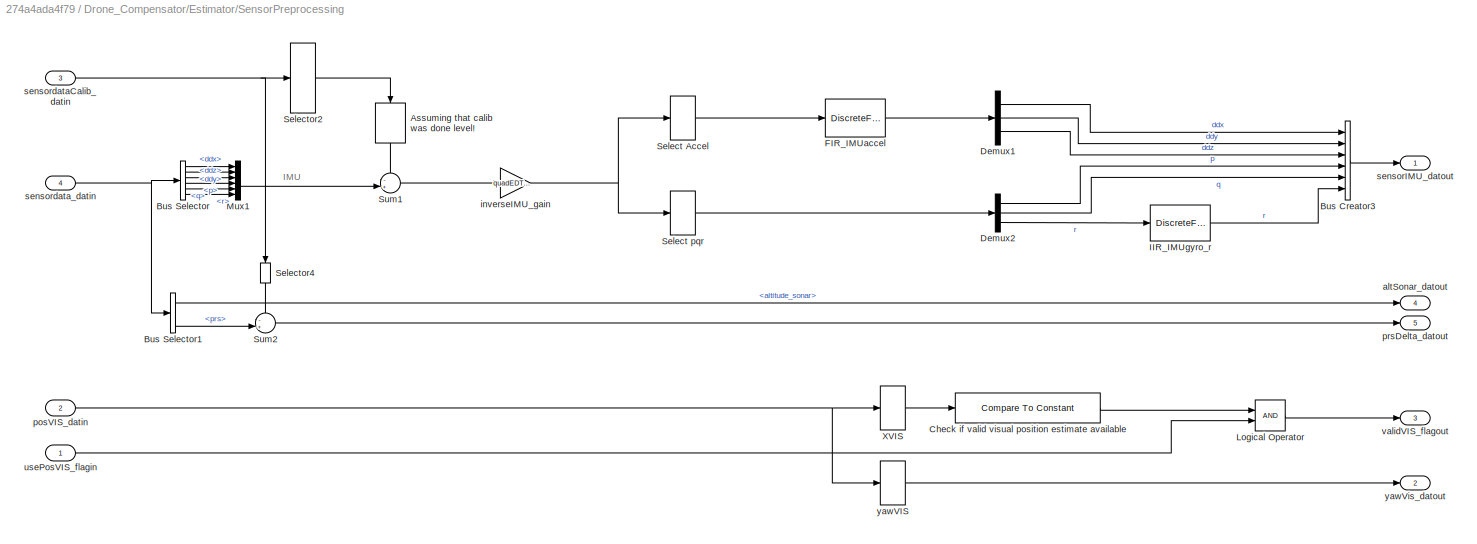
BLOCK [SubSystem] Drone_Compensator/Estimator/SensorPreprocessing
  Ports = [4, 5]
  RequestExecContextInheritance = off
BLOCK [Bias] Drone_Compensator/Estimator/SensorPreprocessing/Assuming that calib was done level!
  Bias = [0 0 +quad.g 0 0 0]
  SaturateOnIntegerOverflow = off
BLOCK [BusCreator] Drone_Compensator/Estimator/SensorPreprocessing/Bus Creator3
  DisplayOption = bar
  InheritFromInputs = on
  Inputs = 6
  Ports = [6, 1]
BLOCK [BusSelector] Drone_Compensator/Estimator/SensorPreprocessing/Bus Selector
  OutputAsBus = off
  OutputSignals = ddx,ddy,ddz,p,q,r
  Ports = [1, 6]
BLOCK [BusSelector] Drone_Compensator/Estimator/SensorPreprocessing/Bus Selector1
  OutputAsBus = off
  OutputSignals = altitude_sonar,prs
  Ports = [1, 2]
BLOCK [Reference] Drone_Compensator/Estimator/SensorPreprocessing/Check if valid visual position estimate available  REF=simulink/Logic and Bit
Operations/Compare
To Constant
  Ports = [1, 1]
  SourceBlock = simulink/Logic and Bit\nOperations/Compare\nTo Constant
  SourceProductBaseCode = SL
  SourceProductName = Simulink
  SourceType = Compare To Constant
BLOCK [Demux] Drone_Compensator/Estimator/SensorPreprocessing/Demux1
  DisplayOption = bar
  Outputs = 3
  Ports = [1, 3]
BLOCK [Demux] Drone_Compensator/Estimator/SensorPreprocessing/Demux2
  DisplayOption = bar
  Outputs = 3
  Ports = [1, 3]
BLOCK [DiscreteFir] Drone_Compensator/Estimator/SensorPreprocessing/FIR_IMUaccel
  Coefficients = estimParams.IMU.filter_accel.Coefficients
  InputPortMap = u0
  OutputPortMap = o0
  Ports = [1, 1]
BLOCK [DiscreteFilter] Drone_Compensator/Estimator/SensorPreprocessing/IIR_IMUgyro_r
  Denominator = estimParams.IMU.filter_gyro_r_a
  InputPortMap = u0
  Numerator = estimParams.IMU.filter_gyro_r_b
  Ports = [1, 1]
BLOCK [Logic] Drone_Compensator/Estimator/SensorPreprocessing/Logical Operator
  AllPortsSameDT = off
  OutDataTypeStr = boolean
  Ports = [2, 1]
BLOCK [Mux] Drone_Compensator/Estimator/SensorPreprocessing/Mux1
  DisplayOption = bar
  Inputs = 6
  Ports = [6, 1]
BLOCK [Selector] Drone_Compensator/Estimator/SensorPreprocessing/Select Accel
  IndexOptions = Index vector (dialog)
  Indices = [1 2 3]
  InputPortWidth = 6
  OutputSizes = 1
  Ports = [1, 1]
BLOCK [Selector] Drone_Compensator/Estimator/SensorPreprocessing/Select pqr
  IndexOptions = Index vector (dialog)
  Indices = [4 5 6]
  InputPortWidth = 6
  OutputSizes = 1
  Ports = [1, 1]
BLOCK [Selector] Drone_Compensator/Estimator/SensorPreprocessing/Selector2
  IndexOptions = Index vector (dialog)
  Indices = [1:6]
  InputPortWidth = 7
  OutputSizes = 1
  Ports = [1, 1]
BLOCK [Selector] Drone_Compensator/Estimator/SensorPreprocessing/Selector4
  IndexOptions = Index vector (dialog)
  Indices = [7]
  InputPortWidth = 7
  OutputSizes = 1
  Ports = [1, 1]
BLOCK [Sum] Drone_Compensator/Estimator/SensorPreprocessing/Sum1
  IconShape = round
  InputSameDT = off
  Inputs = -+|
  OutDataTypeStr = Inherit: Inherit via internal rule
  Ports = [2, 1]
  SaturateOnIntegerOverflow = off
BLOCK [Sum] Drone_Compensator/Estimator/SensorPreprocessing/Sum2
  IconShape = round
  InputSameDT = off
  Inputs = -+|
  OutDataTypeStr = Inherit: Inherit via internal rule
  Ports = [2, 1]
  SaturateOnIntegerOverflow = off
BLOCK [Selector] Drone_Compensator/Estimator/SensorPreprocessing/XVIS
  IndexOptions = Index vector (dialog)
  Indices = 1
  InputPortWidth = 4
  OutputSizes = 1
  Ports = [1, 1]
BLOCK [Outport] Drone_Compensator/Estimator/SensorPreprocessing/altSonar_datout
  IconDisplay = Port number
  Port = 4
BLOCK [Gain] Drone_Compensator/Estimator/SensorPreprocessing/inverseIMU_gain
  Gain = quadEDT.inverseIMU_gain
  OutDataTypeStr = Inherit: Inherit via internal rule
  ParamDataTypeStr = Inherit: Inherit via internal rule
  SaturateOnIntegerOverflow = off
BLOCK [Inport] Drone_Compensator/Estimator/SensorPreprocessing/posVIS_datin
  IconDisplay = Port number
  Port = 2
BLOCK [Outport] Drone_Compensator/Estimator/SensorPreprocessing/prsDelta_datout
  IconDisplay = Port number
  Port = 5
BLOCK [Outport] Drone_Compensator/Estimator/SensorPreprocessing/sensorIMU_datout
  IconDisplay = Port number
BLOCK [Inport] Drone_Compensator/Estimator/SensorPreprocessing/sensordataCalib_datin
  IconDisplay = Port number
  Port = 3
BLOCK [Inport] Drone_Compensator/Estimator/SensorPreprocessing/sensordata_datin
  IconDisplay = Port number
  Port = 4
BLOCK [Inport] Drone_Compensator/Estimator/SensorPreprocessing/usePosVIS_flagin
  IconDisplay = Port number
BLOCK [Outport] Drone_Compensator/Estimator/SensorPreprocessing/validVIS_flagout
  IconDisplay = Port number
  Port = 3
BLOCK [Selector] Drone_Compensator/Estimator/SensorPreprocessing/yawVIS
  IndexOptions = Index vector (dialog)
  Indices = 4
  InputPortWidth = 4
  OutputSizes = 1
  Ports = [1, 1]
BLOCK [Outport] Drone_Compensator/Estimator/SensorPreprocessing/yawVis_datout
  IconDisplay = Port number
  Port = 2
BLOCK [Inport] Drone_Compensator/Estimator/controlModePosVSOrient_flagin
  IconDisplay = Port number
BLOCK [Inport] Drone_Compensator/Estimator/opticalFlow_datin
  IconDisplay = Port number
  Port = 4
BLOCK [Inport] Drone_Compensator/Estimator/posVIS_datin
  IconDisplay = Port number
  Port = 6
BLOCK [Constant] Drone_Compensator/Estimator/sampleTime
  SampleTime = quadEDT.sampletime
  Value = quadEDT.sampletime
BLOCK [Constant] Drone_Compensator/Estimator/sampleTime1
  SampleTime = quadEDT.sampletime
  Value = quad.g
BLOCK [Inport] Drone_Compensator/Estimator/sensordataCalib_datin
  IconDisplay = Port number
  Port = 5
BLOCK [Inport] Drone_Compensator/Estimator/sensordata_datin
  IconDisplay = Port number
  Port = 3
BLOCK [Outport] Drone_Compensator/Estimator/states_estimout
  IconDisplay = Port number
BLOCK [Inport] Drone_Compensator/Estimator/usePosVIS_flagin
  IconDisplay = Port number
  Port = 2
BLOCK [Inport] Drone_Compensator/batteryStatus_datin
  IconDisplay = Port number
  Port = 10
BLOCK [Outport] Drone_Compensator/batteryStatus_datout
  IconDisplay = Port number
  Port = 10
BLOCK [Inport] Drone_Compensator/controlModePosVSOrient_flagin
  IconDisplay = Port number
BLOCK [Outport] Drone_Compensator/controlModePosVSOrient_flagout
  IconDisplay = Port number
  Port = 3
BLOCK [Outport] Drone_Compensator/motors_refout
  IconDisplay = Port number
BLOCK [Inport] Drone_Compensator/opticalFlow_datin
  IconDisplay = Port number
  Port = 6
BLOCK [Outport] Drone_Compensator/opticalFlow_datout
  IconDisplay = Port number
  Port = 6
BLOCK [Inport] Drone_Compensator/orient_refin
  IconDisplay = Port number
  Port = 4
BLOCK [Inport] Drone_Compensator/posVIS_datin
  IconDisplay = Port number
  Port = 8
BLOCK [Outport] Drone_Compensator/posVIS_datout
  IconDisplay = Port number
  Port = 8
BLOCK [Inport] Drone_Compensator/pos_refin
  IconDisplay = Port number
  Port = 2
BLOCK [Outport] Drone_Compensator/pose_refout
  IconDisplay = Port number
  Port = 4
BLOCK [Inport] Drone_Compensator/sensordataCalib_datin
  IconDisplay = Port number
  Port = 7
BLOCK [Outport] Drone_Compensator/sensordataCalib_datout
  IconDisplay = Port number
  Port = 7
BLOCK [Inport] Drone_Compensator/sensordata_datin
  IconDisplay = Port number
  Port = 5
BLOCK [Outport] Drone_Compensator/sensordata_datout
  IconDisplay = Port number
  Port = 5
BLOCK [Outport] Drone_Compensator/states_estimout
  IconDisplay = Port number
  Port = 2
BLOCK [Inport] Drone_Compensator/takeoff_flag
  IconDisplay = Port number
  Port = 3
BLOCK [Outport] Drone_Compensator/takeoff_flagout
  IconDisplay = Port number
  Port = 11
BLOCK [Inport] Drone_Compensator/usePosVIS_flagin
  IconDisplay = Port number
  Port = 9
BLOCK [Outport] Drone_Compensator/usePosVIS_flagout
  IconDisplay = Port number
  Port = 9
BLOCK [ToWorkspace] To Workspace
  FixptAsFi = on
  MaxDataPoints = inf
  Ports = [1]
  SampleTime = -1
  Save2DSignal = 3-D array (concatenate along third dimension)
  SaveFormat = Timeseries
  VariableName = states_estimout
BLOCK [ToWorkspace] To Workspace1
  FixptAsFi = on
  MaxDataPoints = inf
  Ports = [1]
  SampleTime = -1
  Save2DSignal = 3-D array (concatenate along third dimension)
  SaveFormat = Timeseries
  VariableName = motors_refout
BLOCK [ToWorkspace] To Workspace2
  FixptAsFi = on
  MaxDataPoints = inf
  Ports = [1]
  SampleTime = -1
  Save2DSignal = 3-D array (concatenate along third dimension)
  SaveFormat = Timeseries
  VariableName = pose_refout
BLOCK [ToWorkspace] To Workspace3
  FixptAsFi = on
  MaxDataPoints = inf
  Ports = [1]
  SampleTime = -1
  Save2DSignal = 3-D array (concatenate along third dimension)
  SaveFormat = Timeseries
  VariableName = sensordata_datout
BLOCK [ToWorkspace] To Workspace4
  FixptAsFi = on
  MaxDataPoints = inf
  Ports = [1]
  SampleTime = -1
  Save2DSignal = 3-D array (concatenate along third dimension)
  SaveFormat = Timeseries
  VariableName = opticalFlow_datout
BLOCK [ToWorkspace] To Workspace5
  FixptAsFi = on
  MaxDataPoints = inf
  Ports = [1]
  SampleTime = -1
  Save2DSignal = 3-D array (concatenate along third dimension)
  SaveFormat = Timeseries
  VariableName = sensordataCalib_datout
BLOCK [ToWorkspace] To Workspace6
  FixptAsFi = on
  MaxDataPoints = inf
  Ports = [1]
  SampleTime = -1
  Save2DSignal = 3-D array (concatenate along third dimension)
  SaveFormat = Timeseries
  VariableName = posVIS_datout
BLOCK [SubSystem] input_recorded_batteryStatus
  Ports = [0, 1]
  RequestExecContextInheritance = off
BLOCK [FromWorkspace] input_recorded_batteryStatus/From Workspace
  SampleTime = quadEDT.sampletime
  VariableName = RSrun_usePosVIS
  ZeroCross = on
BLOCK [RateTransition] input_recorded_batteryStatus/Rate Transition
  OutPortSampleTime = quadEDT.sampletime
BLOCK [Outport] input_recorded_batteryStatus/batteryStatus_datout
  IconDisplay = Port number
BLOCK [SubSystem] input_recorded_controlmode
  Ports = [0, 1]
  RequestExecContextInheritance = off
BLOCK [FromWorkspace] input_recorded_controlmode/From Workspace
  SampleTime = quadEDT.sampletime
  VariableName = RSrun_controlMode
  ZeroCross = on
BLOCK [RateTransition] input_recorded_controlmode/Rate Transition
  OutPortSampleTime = quadEDT.sampletime
BLOCK [Outport] input_recorded_controlmode/controlModePosVSOrient_flagin
  IconDisplay = Port number
BLOCK [SubSystem] input_recorded_ip
  Ports = [0, 1]
  RequestExecContextInheritance = off
BLOCK [FromWorkspace] input_recorded_ip/From Workspace
  SampleTime = quadEDT.sampletime
  VariableName = RSrun_posVIS
  ZeroCross = on
BLOCK [RateTransition] input_recorded_ip/Rate Transition
  OutPortSampleTime = quadEDT.sampletime
BLOCK [Outport] input_recorded_ip/posVIS_datout
  IconDisplay = Port number
BLOCK [SubSystem] input_recorded_of
  Ports = [0, 1]
  RequestExecContextInheritance = off
BLOCK [FromWorkspace] input_recorded_of/From Workspace
  SampleTime = quadEDT.sampletime
  VariableName = RSrun_opticalFlow
  ZeroCross = on
BLOCK [RateTransition] input_recorded_of/Rate Transition
  OutPortSampleTime = quadEDT.sampletime
BLOCK [Outport] input_recorded_of/opticalFlow_datout
  IconDisplay = Port number
BLOCK [SubSystem] input_recorded_orientref
  Ports = [0, 1]
  RequestExecContextInheritance = off
BLOCK [FromWorkspace] input_recorded_orientref/From Workspace
  SampleTime = quadEDT.sampletime
  VariableName = RSrun_orient_ref
  ZeroCross = on
BLOCK [RateTransition] input_recorded_orientref/Rate Transition
  OutPortSampleTime = quadEDT.sampletime
BLOCK [Outport] input_recorded_orientref/orient_refout
  IconDisplay = Port number
BLOCK [SubSystem] input_recorded_posref
  Ports = [0, 1]
  RequestExecContextInheritance = off
BLOCK [FromWorkspace] input_recorded_posref/From Workspace
  SampleTime = quadEDT.sampletime
  VariableName = RSrun_pos_ref
  ZeroCross = on
BLOCK [RateTransition] input_recorded_posref/Rate Transition
  OutPortSampleTime = quadEDT.sampletime
BLOCK [Outport] input_recorded_posref/pos_refout
  IconDisplay = Port number
BLOCK [SubSystem] input_recorded_sensorCalib
  Ports = [0, 1]
  RequestExecContextInheritance = off
BLOCK [Constant] input_recorded_sensorCalib/From Workspace
  SampleTime = quadEDT.sampletime
  Value = RSrun_sensordataCalib
BLOCK [RateTransition] input_recorded_sensorCalib/Rate Transition4
  OutPortSampleTime = quadEDT.sampletime
BLOCK [Constant] input_recorded_sensorCalib/sensorbias_default
  SampleTime = quadEDT.sampletime
  Value = [0.09 -0.06 +0.337 -0.0095 -0.0075 0.0015 mean(rt_yout.signals(9).values(1:200))]
BLOCK [Outport] input_recorded_sensorCalib/sensordataCalib_datout
  IconDisplay = Port number
BLOCK [SubSystem] input_recorded_sensordata
  Ports = [0, 1]
  RequestExecContextInheritance = off
BLOCK [BusCreator] input_recorded_sensordata/Bus Creator
  DisplayOption = bar
  InheritFromInputs = on
  Inputs = 8
  Ports = [8, 1]
BLOCK [Demux] input_recorded_sensordata/Demux
  DisplayOption = bar
  Outputs = 8
  Ports = [1, 8]
BLOCK [FromWorkspace] input_recorded_sensordata/From Workspace
  SampleTime = quadEDT.sampletime
  VariableName = RSrun_sensordata
  ZeroCross = on
BLOCK [RateTransition] input_recorded_sensordata/Rate Transition
  OutPortSampleTime = quadEDT.sampletime
BLOCK [Outport] input_recorded_sensordata/sensordata_datout
  IconDisplay = Port number
BLOCK [SubSystem] input_recorded_takeoff_flag
  Ports = [0, 1]
  RequestExecContextInheritance = off
BLOCK [FromWorkspace] input_recorded_takeoff_flag/From Workspace
  SampleTime = quadEDT.sampletime
  VariableName = RSrun_takeoff_flag
  ZeroCross = on
BLOCK [RateTransition] input_recorded_takeoff_flag/Rate Transition
  OutPortSampleTime = quadEDT.sampletime
BLOCK [Outport] input_recorded_takeoff_flag/takeoff_flagout
  IconDisplay = Port number
BLOCK [SubSystem] input_recorded_usePosVIS
  Ports = [0, 1]
  RequestExecContextInheritance = off
BLOCK [FromWorkspace] input_recorded_usePosVIS/From Workspace
  SampleTime = quadEDT.sampletime
  VariableName = RSrun_usePosVIS
  ZeroCross = on
BLOCK [RateTransition] input_recorded_usePosVIS/Rate Transition
  OutPortSampleTime = quadEDT.sampletime
BLOCK [Outport] input_recorded_usePosVIS/usePosVIS_flagout
  IconDisplay = Port number
ANNOTATION (root): PUT COMPENSATOR BLOCK HERE
ANNOTATION Drone_Compensator: Switch out this CONTROLLER BLOCK, with e.g. controllers/controller_fullstate/Poleplacement/ controller_poleplace.sl
ANNOTATION Drone_Compensator/ControllerLQR/FullstateController: IMPLEMENT FULLSTATE- CONTROLLER HERE
ANNOTATION Drone_Compensator/ControllerLQR/SysteminputConverter: NOTE: The Systeminputconverter takes care of two things: 1) During take off, adjust the total thrust proposed by the controller 2) Translate the "mechanical" system inputs (total thrust, torques around body-frame x-y-z-axes) to actual motor commands. This R4->R4 mapping is a simple bijective function and does not have any dynamics. This allows us to design the controller with more intuitive "mecha...<+90ch>
ANNOTATION Drone_Compensator/ControllerLQR/SysteminputConverter/ControlMixer: NOTE: The controlmixer translates total thrust and the three torque inputs that the controller came up with into 'thrust per motor'.
ANNOTATION Drone_Compensator/ControllerLQR/SysteminputConverter/Takeoffphase_Thrustadjustment: NOTE: Below 40cm in altitude, sonar measurements and camera data are very unreliable. We therefore introduce a take-off phase where the drone controls attitude only and runs an uncontrolled total thrust of takeofff_Gain/100 % above equilibrium thrust.
ANNOTATION Drone_Compensator/ControllerLQR/SysteminputConverter/Thrust2Motorcmd: NOTE: This block translates thrust per motor into a command that is acutally send to the motors.
ANNOTATION Drone_Compensator/ControllerLQR/statesReferences: NOTE: When we want the drone to reach and maintain a given non-zero orientation, we obviously do not care about errors in x-y-position . A fullstate-feedback controller, however, acts on the full state-error. To avoid influences of a x-y-position error (because in orientation-only-control we don't care about it), we set the x-y-reference-position to the current postition estimate (so we get a zero...<+23ch>
ANNOTATION Drone_Compensator/ControllerLQR/statesReferences: Full-pose-reference
ANNOTATION Drone_Compensator/ControllerLQR/statesReferences: orietation-only control reference
ANNOTATION Drone_Compensator/Estimator/EstimatorXYPosition/EstimatorVelocity/UglyDataHandling: checks if angular dynamics and altitude allow for reasonable use of optical flow measurement, also checks against current estimate
ANNOTATION Drone_Compensator/Estimator/EstimatorXYPosition/EstimatorVelocity/UglyDataHandling: checks new measurement vs current estimate
ANNOTATION Drone_Compensator/Estimator/EstimatorXYPosition/EstimatorVelocity/UglyDataHandling: enables OF for very low angular rates
ANNOTATION Drone_Compensator/Estimator/EstimatorXYPosition/EstimatorVelocity/UglyDataHandling: prevents use of optical flow with large angles, angular rates or accelerations
ANNOTATION Drone_Compensator/Estimator/EstimatorXYPosition/EstimatorVelocity/UglyDataHandling: requires minimum altitude
ANNOTATION Drone_Compensator/Estimator/EstimatorXYPosition/EstimatorXYPosition: Switching from orientationControl to Position control reset the current world position estimate (happens when using no markers!)
ANNOTATION Drone_Compensator/Estimator/SensorPreprocessing: IMU
LINE Drone_Compensator/ControllerLQR/Add:1 -> Drone_Compensator/ControllerLQR/FullstateController:1
LINE Drone_Compensator/ControllerLQR/FullstateController/Constant:1 -> Drone_Compensator/ControllerLQR/FullstateController/MATLAB Function:1
LINE Drone_Compensator/ControllerLQR/FullstateController/MATLAB Function:1 -> Drone_Compensator/ControllerLQR/FullstateController/motors_refout:1
LINE Drone_Compensator/ControllerLQR/FullstateController/state_error_datin:1 -> Drone_Compensator/ControllerLQR/FullstateController/MATLAB Function:2
LINE Drone_Compensator/ControllerLQR/FullstateController:1 -> Drone_Compensator/ControllerLQR/SysteminputConverter:2
LINE Drone_Compensator/ControllerLQR/Select pose:1 -> Drone_Compensator/ControllerLQR/pose_refout:1
LINE Drone_Compensator/ControllerLQR/SysteminputConverter/ControlMixer/Mux2:1 -> Drone_Compensator/ControllerLQR/SysteminputConverter/ControlMixer/Product:2
LINE Drone_Compensator/ControllerLQR/SysteminputConverter/ControlMixer/Product:1 -> Drone_Compensator/ControllerLQR/SysteminputConverter/ControlMixer/Saturation2:1
LINE Drone_Compensator/ControllerLQR/SysteminputConverter/ControlMixer/Saturation2:1 -> Drone_Compensator/ControllerLQR/SysteminputConverter/ControlMixer/thrusts_refout:1
LINE Drone_Compensator/ControllerLQR/SysteminputConverter/ControlMixer/T_refin:1 -> Drone_Compensator/ControllerLQR/SysteminputConverter/ControlMixer/Mux2:1
LINE Drone_Compensator/ControllerLQR/SysteminputConverter/ControlMixer/TorquetotalThrustToThrustperMotor:1 -> Drone_Compensator/ControllerLQR/SysteminputConverter/ControlMixer/Product:1
LINE Drone_Compensator/ControllerLQR/SysteminputConverter/ControlMixer/tau_pitch:1 -> Drone_Compensator/ControllerLQR/SysteminputConverter/ControlMixer/Mux2:3
LINE Drone_Compensator/ControllerLQR/SysteminputConverter/ControlMixer/tau_roll:1 -> Drone_Compensator/ControllerLQR/SysteminputConverter/ControlMixer/Mux2:4
LINE Drone_Compensator/ControllerLQR/SysteminputConverter/ControlMixer/tau_yaw:1 -> Drone_Compensator/ControllerLQR/SysteminputConverter/ControlMixer/Mux2:2
LINE Drone_Compensator/ControllerLQR/SysteminputConverter/ControlMixer:1 -> Drone_Compensator/ControllerLQR/SysteminputConverter/Thrust2Motorcmd:1
LINE Drone_Compensator/ControllerLQR/SysteminputConverter/Conversion Motorcommands To TotalThrust and Torques/MotorsRotationDirection:1 -> Drone_Compensator/ControllerLQR/SysteminputConverter/Conversion Motorcommands To TotalThrust and Torques/motorsToW2_Gain:1
LINE Drone_Compensator/ControllerLQR/SysteminputConverter/Conversion Motorcommands To TotalThrust and Torques/ThrustperMotor To TotalThrust and Torques:1 -> Drone_Compensator/ControllerLQR/SysteminputConverter/Conversion Motorcommands To TotalThrust and Torques/u_tthrust_torques:1
LINE Drone_Compensator/ControllerLQR/SysteminputConverter/Conversion Motorcommands To TotalThrust and Torques/W2ToThrust:1 -> Drone_Compensator/ControllerLQR/SysteminputConverter/Conversion Motorcommands To TotalThrust and Torques/ThrustperMotor To TotalThrust and Torques:1
LINE Drone_Compensator/ControllerLQR/SysteminputConverter/Conversion Motorcommands To TotalThrust and Torques/motorsToW2_Gain:1 -> Drone_Compensator/ControllerLQR/SysteminputConverter/Conversion Motorcommands To TotalThrust and Torques/W2ToThrust:1
LINE Drone_Compensator/ControllerLQR/SysteminputConverter/Conversion Motorcommands To TotalThrust and Torques/motors_refin:1 -> Drone_Compensator/ControllerLQR/SysteminputConverter/Conversion Motorcommands To TotalThrust and Torques/MotorsRotationDirection:1
LINE Drone_Compensator/ControllerLQR/SysteminputConverter/Conversion Motorcommands To TotalThrust and Torques:1 -> Drone_Compensator/ControllerLQR/SysteminputConverter/Demux3:1
LINE Drone_Compensator/ControllerLQR/SysteminputConverter/Demux3:1 -> Drone_Compensator/ControllerLQR/SysteminputConverter/Takeoffphase_Thrustadjustment:2
LINE Drone_Compensator/ControllerLQR/SysteminputConverter/Demux3:2 -> Drone_Compensator/ControllerLQR/SysteminputConverter/ControlMixer:2
LINE Drone_Compensator/ControllerLQR/SysteminputConverter/Demux3:3 -> Drone_Compensator/ControllerLQR/SysteminputConverter/ControlMixer:3
LINE Drone_Compensator/ControllerLQR/SysteminputConverter/Demux3:4 -> Drone_Compensator/ControllerLQR/SysteminputConverter/ControlMixer:4
LINE Drone_Compensator/ControllerLQR/SysteminputConverter/Takeoffphase_Thrustadjustment/Add1:1 -> Drone_Compensator/ControllerLQR/SysteminputConverter/Takeoffphase_Thrustadjustment/SaturationThrust:1
NET Drone_Compensator/ControllerLQR/SysteminputConverter/Takeoffphase_Thrustadjustment/HoverThrustLinearizationPoint:1 -> Drone_Compensator/ControllerLQR/SysteminputConverter/Takeoffphase_Thrustadjustment/Add1:1, Drone_Compensator/ControllerLQR/SysteminputConverter/Takeoffphase_Thrustadjustment/takeoff_gain:1
NET Drone_Compensator/ControllerLQR/SysteminputConverter/Takeoffphase_Thrustadjustment/SaturationThrust:1 -> Drone_Compensator/ControllerLQR/SysteminputConverter/Takeoffphase_Thrustadjustment/SCOPE_totalthrust :1, Drone_Compensator/ControllerLQR/SysteminputConverter/Takeoffphase_Thrustadjustment/totThrust_refout:1
LINE Drone_Compensator/ControllerLQR/SysteminputConverter/Takeoffphase_Thrustadjustment/TakeoffOrControl_Switch:1 -> Drone_Compensator/ControllerLQR/SysteminputConverter/Takeoffphase_Thrustadjustment/Add1:2
LINE Drone_Compensator/ControllerLQR/SysteminputConverter/Takeoffphase_Thrustadjustment/takeoff_gain:1 -> Drone_Compensator/ControllerLQR/SysteminputConverter/Takeoffphase_Thrustadjustment/TakeoffOrControl_Switch:1
LINE Drone_Compensator/ControllerLQR/SysteminputConverter/Takeoffphase_Thrustadjustment/takeoffphase_flagin:1 -> Drone_Compensator/ControllerLQR/SysteminputConverter/Takeoffphase_Thrustadjustment/TakeoffOrControl_Switch:2
LINE Drone_Compensator/ControllerLQR/SysteminputConverter/Takeoffphase_Thrustadjustment/totThrustbyController_refin:1 -> Drone_Compensator/ControllerLQR/SysteminputConverter/Takeoffphase_Thrustadjustment/TakeoffOrControl_Switch:3
LINE Drone_Compensator/ControllerLQR/SysteminputConverter/Takeoffphase_Thrustadjustment:1 -> Drone_Compensator/ControllerLQR/SysteminputConverter/ControlMixer:1
NET Drone_Compensator/ControllerLQR/SysteminputConverter/Thrust2Motorcmd/MotorsRotationDirection:1 -> Drone_Compensator/ControllerLQR/SysteminputConverter/Thrust2Motorcmd/Signed Sqrt:1, Drone_Compensator/ControllerLQR/SysteminputConverter/Thrust2Motorcmd/W2ToMotorsCmd_Gain:1
LINE Drone_Compensator/ControllerLQR/SysteminputConverter/Thrust2Motorcmd/ThrustToW2_Gain:1 -> Drone_Compensator/ControllerLQR/SysteminputConverter/Thrust2Motorcmd/MotorsRotationDirection:1
LINE Drone_Compensator/ControllerLQR/SysteminputConverter/Thrust2Motorcmd/W2ToMotorsCmd_Gain:1 -> Drone_Compensator/ControllerLQR/SysteminputConverter/Thrust2Motorcmd/motors_refout:1
LINE Drone_Compensator/ControllerLQR/SysteminputConverter/Thrust2Motorcmd/thrusts_refin:1 -> Drone_Compensator/ControllerLQR/SysteminputConverter/Thrust2Motorcmd/ThrustToW2_Gain:1
LINE Drone_Compensator/ControllerLQR/SysteminputConverter/Thrust2Motorcmd:1 -> Drone_Compensator/ControllerLQR/SysteminputConverter/motors_refout:1
LINE Drone_Compensator/ControllerLQR/SysteminputConverter/motors_refin:1 -> Drone_Compensator/ControllerLQR/SysteminputConverter/Conversion Motorcommands To TotalThrust and Torques:1
LINE Drone_Compensator/ControllerLQR/SysteminputConverter/takeoffphase_flagin:1 -> Drone_Compensator/ControllerLQR/SysteminputConverter/Takeoffphase_Thrustadjustment:1
LINE Drone_Compensator/ControllerLQR/SysteminputConverter:1 -> Drone_Compensator/ControllerLQR/motors_refout:1
LINE Drone_Compensator/ControllerLQR/controlModePosVSOrient_flagin:1 -> Drone_Compensator/ControllerLQR/statesReferences:3
LINE Drone_Compensator/ControllerLQR/orient_refin:1 -> Drone_Compensator/ControllerLQR/statesReferences:2
LINE Drone_Compensator/ControllerLQR/pos_refin:1 -> Drone_Compensator/ControllerLQR/statesReferences:1
LINE Drone_Compensator/ControllerLQR/statesReferences/Bus Selector1:1 -> Drone_Compensator/ControllerLQR/statesReferences/Mux1:1
LINE Drone_Compensator/ControllerLQR/statesReferences/Bus Selector1:2 -> Drone_Compensator/ControllerLQR/statesReferences/Mux1:2
LINE Drone_Compensator/ControllerLQR/statesReferences/Bus Selector:1 -> Drone_Compensator/ControllerLQR/statesReferences/Mux5:1
LINE Drone_Compensator/ControllerLQR/statesReferences/Bus Selector:2 -> Drone_Compensator/ControllerLQR/statesReferences/Mux5:2
LINE Drone_Compensator/ControllerLQR/statesReferences/Mux1:1 -> Drone_Compensator/ControllerLQR/statesReferences/Mux4:3
LINE Drone_Compensator/ControllerLQR/statesReferences/Mux3:1 -> Drone_Compensator/ControllerLQR/statesReferences/PosVSOrient_Switch:1
LINE Drone_Compensator/ControllerLQR/statesReferences/Mux4:1 -> Drone_Compensator/ControllerLQR/statesReferences/PosVSOrient_Switch:3
LINE Drone_Compensator/ControllerLQR/statesReferences/Mux5:1 -> Drone_Compensator/ControllerLQR/statesReferences/Mux4:1
LINE Drone_Compensator/ControllerLQR/statesReferences/PosVSOrient_Switch:1 -> Drone_Compensator/ControllerLQR/statesReferences/states_refout:1
LINE Drone_Compensator/ControllerLQR/statesReferences/Selector:1 -> Drone_Compensator/ControllerLQR/statesReferences/Mux5:3
LINE Drone_Compensator/ControllerLQR/statesReferences/controlModePosVSOrient_flagin:1 -> Drone_Compensator/ControllerLQR/statesReferences/PosVSOrient_Switch:2
LINE Drone_Compensator/ControllerLQR/statesReferences/dz_ref:1 -> Drone_Compensator/ControllerLQR/statesReferences/Mux1:3
NET Drone_Compensator/ControllerLQR/statesReferences/orient_refin:1 -> Drone_Compensator/ControllerLQR/statesReferences/Mux3:2, Drone_Compensator/ControllerLQR/statesReferences/Mux4:2
NET Drone_Compensator/ControllerLQR/statesReferences/pos_refin:1 -> Drone_Compensator/ControllerLQR/statesReferences/Mux3:1, Drone_Compensator/ControllerLQR/statesReferences/Selector:1
NET Drone_Compensator/ControllerLQR/statesReferences/states_estimin:1 -> Drone_Compensator/ControllerLQR/statesReferences/Bus Selector1:1, Drone_Compensator/ControllerLQR/statesReferences/Bus Selector:1
LINE Drone_Compensator/ControllerLQR/statesReferences/velocitiesPos_ref:1 -> Drone_Compensator/ControllerLQR/statesReferences/Mux3:3
NET Drone_Compensator/ControllerLQR/statesReferences/velocitiesRot_ref:1 -> Drone_Compensator/ControllerLQR/statesReferences/Mux3:4, Drone_Compensator/ControllerLQR/statesReferences/Mux4:4
NET Drone_Compensator/ControllerLQR/statesReferences:1 -> Drone_Compensator/ControllerLQR/Add:1, Drone_Compensator/ControllerLQR/Select pose:1
NET Drone_Compensator/ControllerLQR/states_estimin:1 -> Drone_Compensator/ControllerLQR/Add:2, Drone_Compensator/ControllerLQR/statesReferences:4
LINE Drone_Compensator/ControllerLQR/takeoff_flag:1 -> Drone_Compensator/ControllerLQR/SysteminputConverter:1
LINE Drone_Compensator/ControllerLQR:1 -> Drone_Compensator/motors_refout:1
LINE Drone_Compensator/ControllerLQR:2 -> Drone_Compensator/pose_refout:1
NET Drone_Compensator/Estimator/Bus Creator:1 -> Drone_Compensator/Estimator/Bus Selector6:1, Drone_Compensator/Estimator/states_estimout:1
LINE Drone_Compensator/Estimator/Bus Selector6:1 -> Drone_Compensator/Estimator/SCOPE_orientation_Euler_estim:1
LINE Drone_Compensator/Estimator/Delay1:1 -> Drone_Compensator/Estimator/EstimatorAltitude:5
LINE Drone_Compensator/Estimator/Demux1:1 -> Drone_Compensator/Estimator/Bus Creator:10
LINE Drone_Compensator/Estimator/Demux1:2 -> Drone_Compensator/Estimator/Bus Creator:11
LINE Drone_Compensator/Estimator/Demux1:3 -> Drone_Compensator/Estimator/Bus Creator:12
LINE Drone_Compensator/Estimator/Demux3:1 -> Drone_Compensator/Estimator/Bus Creator:7
LINE Drone_Compensator/Estimator/Demux3:2 -> Drone_Compensator/Estimator/Bus Creator:8
LINE Drone_Compensator/Estimator/Demux4:1 -> Drone_Compensator/Estimator/Bus Creator:1
LINE Drone_Compensator/Estimator/Demux4:2 -> Drone_Compensator/Estimator/Bus Creator:2
LINE Drone_Compensator/Estimator/Demux:1 -> Drone_Compensator/Estimator/Bus Creator:4
LINE Drone_Compensator/Estimator/Demux:2 -> Drone_Compensator/Estimator/Bus Creator:5
LINE Drone_Compensator/Estimator/Demux:3 -> Drone_Compensator/Estimator/Bus Creator:6
LINE Drone_Compensator/Estimator/EstimatorAltitude/Bias1:1 -> Drone_Compensator/Estimator/EstimatorAltitude/Mux1:4
LINE Drone_Compensator/Estimator/EstimatorAltitude/Bias:1 -> Drone_Compensator/Estimator/EstimatorAltitude/Mux1:3
LINE Drone_Compensator/Estimator/EstimatorAltitude/Bus Selector2:1 -> Drone_Compensator/Estimator/EstimatorAltitude/Mux2:1
LINE Drone_Compensator/Estimator/EstimatorAltitude/Bus Selector2:2 -> Drone_Compensator/Estimator/EstimatorAltitude/Mux2:2
LINE Drone_Compensator/Estimator/EstimatorAltitude/Bus Selector2:3 -> Drone_Compensator/Estimator/EstimatorAltitude/Mux2:3
NET Drone_Compensator/Estimator/EstimatorAltitude/Delay2:1 -> Drone_Compensator/Estimator/EstimatorAltitude/OutlierHandling:3, Drone_Compensator/Estimator/EstimatorAltitude/outlierBelowFloor:1
NET Drone_Compensator/Estimator/EstimatorAltitude/Demux:1 -> Drone_Compensator/Estimator/EstimatorAltitude/Bias1:1, Drone_Compensator/Estimator/EstimatorAltitude/Bias:1, Drone_Compensator/Estimator/EstimatorAltitude/Delay2:1, Drone_Compensator/Estimator/EstimatorAltitude/Z_estimout:1
LINE Drone_Compensator/Estimator/EstimatorAltitude/Demux:2 -> Drone_Compensator/Estimator/EstimatorAltitude/Mux:2
NET Drone_Compensator/Estimator/EstimatorAltitude/KalmanFilter_altitude:1 -> Drone_Compensator/Estimator/EstimatorAltitude/Demux:1, Drone_Compensator/Estimator/EstimatorAltitude/Mux1:1
LINE Drone_Compensator/Estimator/EstimatorAltitude/Mux1:1 -> Drone_Compensator/Estimator/EstimatorAltitude/SCOPE_altitude_Kalmanestimate:1
LINE Drone_Compensator/Estimator/EstimatorAltitude/Mux2:1 -> Drone_Compensator/Estimator/EstimatorAltitude/trafo_BodytoWorld_trans:2
LINE Drone_Compensator/Estimator/EstimatorAltitude/Mux:1 -> Drone_Compensator/Estimator/EstimatorAltitude/trafo_WorldToBody_trans:2
LINE Drone_Compensator/Estimator/EstimatorAltitude/OutlierHandling/Absestdiff1:1 -> Drone_Compensator/Estimator/EstimatorAltitude/OutlierHandling/currentEstimateVeryOffFromPressure:1
LINE Drone_Compensator/Estimator/EstimatorAltitude/OutlierHandling/Absestdiff2:1 -> Drone_Compensator/Estimator/EstimatorAltitude/OutlierHandling/currentStateVeryOffsonarflt:1
LINE Drone_Compensator/Estimator/EstimatorAltitude/OutlierHandling/Absestdiff:1 -> Drone_Compensator/Estimator/EstimatorAltitude/OutlierHandling/outlierJump:1
LINE Drone_Compensator/Estimator/EstimatorAltitude/OutlierHandling/Add1:1 -> Drone_Compensator/Estimator/EstimatorAltitude/OutlierHandling/Absestdiff1:1
LINE Drone_Compensator/Estimator/EstimatorAltitude/OutlierHandling/Add2:1 -> Drone_Compensator/Estimator/EstimatorAltitude/OutlierHandling/Absestdiff2:1
LINE Drone_Compensator/Estimator/EstimatorAltitude/OutlierHandling/Add:1 -> Drone_Compensator/Estimator/EstimatorAltitude/OutlierHandling/Absestdiff:1
LINE Drone_Compensator/Estimator/EstimatorAltitude/OutlierHandling/SaturationSonar:1 -> Drone_Compensator/Estimator/EstimatorAltitude/OutlierHandling/Add:1
NET Drone_Compensator/Estimator/EstimatorAltitude/OutlierHandling/Z_estimin:1 -> Drone_Compensator/Estimator/EstimatorAltitude/OutlierHandling/Add1:1, Drone_Compensator/Estimator/EstimatorAltitude/OutlierHandling/Add2:1, Drone_Compensator/Estimator/EstimatorAltitude/OutlierHandling/Add:2
LINE Drone_Compensator/Estimator/EstimatorAltitude/OutlierHandling/altPrs_datin:1 -> Drone_Compensator/Estimator/EstimatorAltitude/OutlierHandling/pressureFilter_IIR:1
NET Drone_Compensator/Estimator/EstimatorAltitude/OutlierHandling/altSonar_datin:1 -> Drone_Compensator/Estimator/EstimatorAltitude/OutlierHandling/SaturationSonar:1, Drone_Compensator/Estimator/EstimatorAltitude/OutlierHandling/check for min altitude:1, Drone_Compensator/Estimator/EstimatorAltitude/OutlierHandling/soonarFilter_IIR:1
LINE Drone_Compensator/Estimator/EstimatorAltitude/OutlierHandling/check for min altitude:1 -> Drone_Compensator/Estimator/EstimatorAltitude/OutlierHandling/findingoutliers:2
LINE Drone_Compensator/Estimator/EstimatorAltitude/OutlierHandling/currentEstimateVeryOffFromPressure:1 -> Drone_Compensator/Estimator/EstimatorAltitude/OutlierHandling/newupdateneeded:1
LINE Drone_Compensator/Estimator/EstimatorAltitude/OutlierHandling/currentStateVeryOffsonarflt:1 -> Drone_Compensator/Estimator/EstimatorAltitude/OutlierHandling/newupdateneeded:2
LINE Drone_Compensator/Estimator/EstimatorAltitude/OutlierHandling/findingoutliers:1 -> Drone_Compensator/Estimator/EstimatorAltitude/OutlierHandling/nicemeasurementor newupdateneeded:1
LINE Drone_Compensator/Estimator/EstimatorAltitude/OutlierHandling/newupdateneeded:1 -> Drone_Compensator/Estimator/EstimatorAltitude/OutlierHandling/nicemeasurementor newupdateneeded:2
LINE Drone_Compensator/Estimator/EstimatorAltitude/OutlierHandling/nicemeasurementor newupdateneeded:1 -> Drone_Compensator/Estimator/EstimatorAltitude/OutlierHandling/enableKFmeasupdate_flagout:1
LINE Drone_Compensator/Estimator/EstimatorAltitude/OutlierHandling/outlierJump:1 -> Drone_Compensator/Estimator/EstimatorAltitude/OutlierHandling/findingoutliers:1
LINE Drone_Compensator/Estimator/EstimatorAltitude/OutlierHandling/pressureFilter_IIR:1 -> Drone_Compensator/Estimator/EstimatorAltitude/OutlierHandling/Add1:2
LINE Drone_Compensator/Estimator/EstimatorAltitude/OutlierHandling/soonarFilter_IIR:1 -> Drone_Compensator/Estimator/EstimatorAltitude/OutlierHandling/Add2:2
LINE Drone_Compensator/Estimator/EstimatorAltitude/OutlierHandling:1 -> Drone_Compensator/Estimator/EstimatorAltitude/KalmanFilter_altitude:3
LINE Drone_Compensator/Estimator/EstimatorAltitude/Selector4:1 -> Drone_Compensator/Estimator/EstimatorAltitude/dz_estimout:1
LINE Drone_Compensator/Estimator/EstimatorAltitude/Selector5:1 -> Drone_Compensator/Estimator/EstimatorAltitude/KalmanFilter_altitude:1
LINE Drone_Compensator/Estimator/EstimatorAltitude/Sum:1 -> Drone_Compensator/Estimator/EstimatorAltitude/Selector5:1
LINE Drone_Compensator/Estimator/EstimatorAltitude/altSonar_datin:1 -> Drone_Compensator/Estimator/EstimatorAltitude/invertzaxisGain:1
LINE Drone_Compensator/Estimator/EstimatorAltitude/dxy_estimin:1 -> Drone_Compensator/Estimator/EstimatorAltitude/Mux:1
LINE Drone_Compensator/Estimator/EstimatorAltitude/gravity:1 -> Drone_Compensator/Estimator/EstimatorAltitude/Sum:2
LINE Drone_Compensator/Estimator/EstimatorAltitude/invertzaxisGain:1 -> Drone_Compensator/Estimator/EstimatorAltitude/OutlierHandling:1
NET Drone_Compensator/Estimator/EstimatorAltitude/orient_estimin:1 -> Drone_Compensator/Estimator/EstimatorAltitude/trafo_BodytoWorld_trans:1, Drone_Compensator/Estimator/EstimatorAltitude/trafo_WorldToBody_trans:1
LINE Drone_Compensator/Estimator/EstimatorAltitude/outlierBelowFloor:1 -> Drone_Compensator/Estimator/EstimatorAltitude/KalmanFilter_altitude:4
LINE Drone_Compensator/Estimator/EstimatorAltitude/prsDelta_datin:1 -> Drone_Compensator/Estimator/EstimatorAltitude/prsToAlt_gain:1
NET Drone_Compensator/Estimator/EstimatorAltitude/prsToAlt_gain:1 -> Drone_Compensator/Estimator/EstimatorAltitude/KalmanFilter_altitude:2, Drone_Compensator/Estimator/EstimatorAltitude/Mux1:2, Drone_Compensator/Estimator/EstimatorAltitude/OutlierHandling:2, Drone_Compensator/Estimator/EstimatorAltitude/SCOPE_altitude_pressure:1
LINE Drone_Compensator/Estimator/EstimatorAltitude/sensorIMU_datin:1 -> Drone_Compensator/Estimator/EstimatorAltitude/Bus Selector2:1
LINE Drone_Compensator/Estimator/EstimatorAltitude/trafo_BodytoWorld_trans:1 -> Drone_Compensator/Estimator/EstimatorAltitude/Sum:1
LINE Drone_Compensator/Estimator/EstimatorAltitude/trafo_WorldToBody_trans:1 -> Drone_Compensator/Estimator/EstimatorAltitude/Selector4:1
NET Drone_Compensator/Estimator/EstimatorAltitude:1 -> Drone_Compensator/Estimator/Bus Creator:9, Drone_Compensator/Estimator/EstimatorXYPosition:8
NET Drone_Compensator/Estimator/EstimatorAltitude:2 -> Drone_Compensator/Estimator/Bus Creator:3, Drone_Compensator/Estimator/EstimatorXYPosition:7
NET Drone_Compensator/Estimator/EstimatorOrientation:1 -> Drone_Compensator/Estimator/Demux:1, Drone_Compensator/Estimator/EstimatorAltitude:1, Drone_Compensator/Estimator/EstimatorXYPosition:6
LINE Drone_Compensator/Estimator/EstimatorOrientation:2 -> Drone_Compensator/Estimator/Demux1:1
LINE Drone_Compensator/Estimator/EstimatorOrientation:3 -> Drone_Compensator/Estimator/SCOPE_deuler:1
LINE Drone_Compensator/Estimator/EstimatorXYPosition/EstimatorVelocity/AccelerationHandling/Add:1 -> Drone_Compensator/Estimator/EstimatorXYPosition/EstimatorVelocity/AccelerationHandling/SelectPlanarddxy:1
LINE Drone_Compensator/Estimator/EstimatorXYPosition/EstimatorVelocity/AccelerationHandling/Bus Selector1:1 -> Drone_Compensator/Estimator/EstimatorXYPosition/EstimatorVelocity/AccelerationHandling/Mux6:1
LINE Drone_Compensator/Estimator/EstimatorXYPosition/EstimatorVelocity/AccelerationHandling/Bus Selector1:2 -> Drone_Compensator/Estimator/EstimatorXYPosition/EstimatorVelocity/AccelerationHandling/Mux6:2
LINE Drone_Compensator/Estimator/EstimatorXYPosition/EstimatorVelocity/AccelerationHandling/Bus Selector1:3 -> Drone_Compensator/Estimator/EstimatorXYPosition/EstimatorVelocity/AccelerationHandling/Mux6:3
LINE Drone_Compensator/Estimator/EstimatorXYPosition/EstimatorVelocity/AccelerationHandling/Deactivate Acceleration If OF is not used due to low altitude:1 -> Drone_Compensator/Estimator/EstimatorXYPosition/EstimatorVelocity/AccelerationHandling/Product:3
LINE Drone_Compensator/Estimator/EstimatorXYPosition/EstimatorVelocity/AccelerationHandling/Logical Operator:1 -> Drone_Compensator/Estimator/EstimatorXYPosition/EstimatorVelocity/AccelerationHandling/Product:1
LINE Drone_Compensator/Estimator/EstimatorXYPosition/EstimatorVelocity/AccelerationHandling/Mux6:1 -> Drone_Compensator/Estimator/EstimatorXYPosition/EstimatorVelocity/AccelerationHandling/Add:2
LINE Drone_Compensator/Estimator/EstimatorXYPosition/EstimatorVelocity/AccelerationHandling/Product:1 -> Drone_Compensator/Estimator/EstimatorXYPosition/EstimatorVelocity/AccelerationHandling/acceleration_world:1
LINE Drone_Compensator/Estimator/EstimatorXYPosition/EstimatorVelocity/AccelerationHandling/SelectPlanarddxy:1 -> Drone_Compensator/Estimator/EstimatorXYPosition/EstimatorVelocity/AccelerationHandling/gainaccinput:1
LINE Drone_Compensator/Estimator/EstimatorXYPosition/EstimatorVelocity/AccelerationHandling/Selector1:1 -> Drone_Compensator/Estimator/EstimatorXYPosition/EstimatorVelocity/AccelerationHandling/do not use acc if optical flow never available (Note OF@60Hz but ZOH to 200!)1:1
LINE Drone_Compensator/Estimator/EstimatorXYPosition/EstimatorVelocity/AccelerationHandling/Selector:1 -> Drone_Compensator/Estimator/EstimatorXYPosition/EstimatorVelocity/AccelerationHandling/do not use acc if optical flow never available (Note OF@60Hz but ZOH to 200!):1
LINE Drone_Compensator/Estimator/EstimatorXYPosition/EstimatorVelocity/AccelerationHandling/Z_estimin:1 -> Drone_Compensator/Estimator/EstimatorXYPosition/EstimatorVelocity/AccelerationHandling/Deactivate Acceleration If OF is not used due to low altitude:1
LINE Drone_Compensator/Estimator/EstimatorXYPosition/EstimatorVelocity/AccelerationHandling/do not use acc if optical flow never available (Note OF@60Hz but ZOH to 200!)1:1 -> Drone_Compensator/Estimator/EstimatorXYPosition/EstimatorVelocity/AccelerationHandling/Logical Operator:2
LINE Drone_Compensator/Estimator/EstimatorXYPosition/EstimatorVelocity/AccelerationHandling/do not use acc if optical flow never available (Note OF@60Hz but ZOH to 200!):1 -> Drone_Compensator/Estimator/EstimatorXYPosition/EstimatorVelocity/AccelerationHandling/Logical Operator:1
NET Drone_Compensator/Estimator/EstimatorXYPosition/EstimatorVelocity/AccelerationHandling/dxy_estimin:1 -> Drone_Compensator/Estimator/EstimatorXYPosition/EstimatorVelocity/AccelerationHandling/Selector1:1, Drone_Compensator/Estimator/EstimatorXYPosition/EstimatorVelocity/AccelerationHandling/Selector:1
LINE Drone_Compensator/Estimator/EstimatorXYPosition/EstimatorVelocity/AccelerationHandling/gainaccinput:1 -> Drone_Compensator/Estimator/EstimatorXYPosition/EstimatorVelocity/AccelerationHandling/Product:2
LINE Drone_Compensator/Estimator/EstimatorXYPosition/EstimatorVelocity/AccelerationHandling/gravity:1 -> Drone_Compensator/Estimator/EstimatorXYPosition/EstimatorVelocity/AccelerationHandling/trafo_World2Body_trans:2
LINE Drone_Compensator/Estimator/EstimatorXYPosition/EstimatorVelocity/AccelerationHandling/orient_estimin:1 -> Drone_Compensator/Estimator/EstimatorXYPosition/EstimatorVelocity/AccelerationHandling/trafo_World2Body_trans:1
LINE Drone_Compensator/Estimator/EstimatorXYPosition/EstimatorVelocity/AccelerationHandling/sensorIMU_datin:1 -> Drone_Compensator/Estimator/EstimatorXYPosition/EstimatorVelocity/AccelerationHandling/Bus Selector1:1
LINE Drone_Compensator/Estimator/EstimatorXYPosition/EstimatorVelocity/AccelerationHandling/trafo_World2Body_trans:1 -> Drone_Compensator/Estimator/EstimatorXYPosition/EstimatorVelocity/AccelerationHandling/Add:1
LINE Drone_Compensator/Estimator/EstimatorXYPosition/EstimatorVelocity/AccelerationHandling:1 -> Drone_Compensator/Estimator/EstimatorXYPosition/EstimatorVelocity/KalmanFilter_dxdy:1
LINE Drone_Compensator/Estimator/EstimatorXYPosition/EstimatorVelocity/Delay:1 -> Drone_Compensator/Estimator/EstimatorXYPosition/EstimatorVelocity/UglyDataHandling:5
NET Drone_Compensator/Estimator/EstimatorXYPosition/EstimatorVelocity/KalmanFilter_dxdy:1 -> Drone_Compensator/Estimator/EstimatorXYPosition/EstimatorVelocity/Delay:1, Drone_Compensator/Estimator/EstimatorXYPosition/EstimatorVelocity/Mux:2, Drone_Compensator/Estimator/EstimatorXYPosition/EstimatorVelocity/dxy_estimout:1
LINE Drone_Compensator/Estimator/EstimatorXYPosition/EstimatorVelocity/Mux:1 -> Drone_Compensator/Estimator/EstimatorXYPosition/EstimatorVelocity/SCOPE_dxy:1
NET Drone_Compensator/Estimator/EstimatorXYPosition/EstimatorVelocity/Select dxy:1 -> Drone_Compensator/Estimator/EstimatorXYPosition/EstimatorVelocity/AccelerationHandling:1, Drone_Compensator/Estimator/EstimatorXYPosition/EstimatorVelocity/KalmanFilter_dxdy:2, Drone_Compensator/Estimator/EstimatorXYPosition/EstimatorVelocity/Mux:1, Drone_Compensator/Estimator/EstimatorXYPosition/EstimatorVelocity/UglyDataHandling:4
LINE Drone_Compensator/Estimator/EstimatorXYPosition/EstimatorVelocity/UglyDataHandling/Abs1:1 -> Drone_Compensator/Estimator/EstimatorXYPosition/EstimatorVelocity/UglyDataHandling/maxw2:1
LINE Drone_Compensator/Estimator/EstimatorXYPosition/EstimatorVelocity/UglyDataHandling/Abs2:1 -> Drone_Compensator/Estimator/EstimatorXYPosition/EstimatorVelocity/UglyDataHandling/maxp:1
LINE Drone_Compensator/Estimator/EstimatorXYPosition/EstimatorVelocity/UglyDataHandling/Abs3:1 -> Drone_Compensator/Estimator/EstimatorXYPosition/EstimatorVelocity/UglyDataHandling/maxq:1
LINE Drone_Compensator/Estimator/EstimatorXYPosition/EstimatorVelocity/UglyDataHandling/Abs4:1 -> Drone_Compensator/Estimator/EstimatorXYPosition/EstimatorVelocity/UglyDataHandling/maxp2:1
LINE Drone_Compensator/Estimator/EstimatorXYPosition/EstimatorVelocity/UglyDataHandling/Abs5:1 -> Drone_Compensator/Estimator/EstimatorXYPosition/EstimatorVelocity/UglyDataHandling/maxq2:1
LINE Drone_Compensator/Estimator/EstimatorXYPosition/EstimatorVelocity/UglyDataHandling/Abs6:1 -> Drone_Compensator/Estimator/EstimatorXYPosition/EstimatorVelocity/UglyDataHandling/maxdw1:1
LINE Drone_Compensator/Estimator/EstimatorXYPosition/EstimatorVelocity/UglyDataHandling/Abs7:1 -> Drone_Compensator/Estimator/EstimatorXYPosition/EstimatorVelocity/UglyDataHandling/maxdw2:1
LINE Drone_Compensator/Estimator/EstimatorXYPosition/EstimatorVelocity/UglyDataHandling/Abs8:1 -> Drone_Compensator/Estimator/EstimatorXYPosition/EstimatorVelocity/UglyDataHandling/maxw3:1
LINE Drone_Compensator/Estimator/EstimatorXYPosition/EstimatorVelocity/UglyDataHandling/Abs9:1 -> Drone_Compensator/Estimator/EstimatorXYPosition/EstimatorVelocity/UglyDataHandling/maxw4:1
LINE Drone_Compensator/Estimator/EstimatorXYPosition/EstimatorVelocity/UglyDataHandling/Abs:1 -> Drone_Compensator/Estimator/EstimatorXYPosition/EstimatorVelocity/UglyDataHandling/maxw1:1
LINE Drone_Compensator/Estimator/EstimatorXYPosition/EstimatorVelocity/UglyDataHandling/Add:1 -> Drone_Compensator/Estimator/EstimatorXYPosition/EstimatorVelocity/UglyDataHandling/Demux3:1
LINE Drone_Compensator/Estimator/EstimatorXYPosition/EstimatorVelocity/UglyDataHandling/Bus Selector:1 -> Drone_Compensator/Estimator/EstimatorXYPosition/EstimatorVelocity/UglyDataHandling/Mux5:1
LINE Drone_Compensator/Estimator/EstimatorXYPosition/EstimatorVelocity/UglyDataHandling/Bus Selector:2 -> Drone_Compensator/Estimator/EstimatorXYPosition/EstimatorVelocity/UglyDataHandling/Mux5:2
LINE Drone_Compensator/Estimator/EstimatorXYPosition/EstimatorVelocity/UglyDataHandling/Demux1:1 -> Drone_Compensator/Estimator/EstimatorXYPosition/EstimatorVelocity/UglyDataHandling/Abs4:1
LINE Drone_Compensator/Estimator/EstimatorXYPosition/EstimatorVelocity/UglyDataHandling/Demux1:2 -> Drone_Compensator/Estimator/EstimatorXYPosition/EstimatorVelocity/UglyDataHandling/Abs5:1
LINE Drone_Compensator/Estimator/EstimatorXYPosition/EstimatorVelocity/UglyDataHandling/Demux2:1 -> Drone_Compensator/Estimator/EstimatorXYPosition/EstimatorVelocity/UglyDataHandling/Abs6:1
LINE Drone_Compensator/Estimator/EstimatorXYPosition/EstimatorVelocity/UglyDataHandling/Demux2:2 -> Drone_Compensator/Estimator/EstimatorXYPosition/EstimatorVelocity/UglyDataHandling/Abs7:1
LINE Drone_Compensator/Estimator/EstimatorXYPosition/EstimatorVelocity/UglyDataHandling/Demux3:1 -> Drone_Compensator/Estimator/EstimatorXYPosition/EstimatorVelocity/UglyDataHandling/Abs8:1
LINE Drone_Compensator/Estimator/EstimatorXYPosition/EstimatorVelocity/UglyDataHandling/Demux3:2 -> Drone_Compensator/Estimator/EstimatorXYPosition/EstimatorVelocity/UglyDataHandling/Abs9:1
LINE Drone_Compensator/Estimator/EstimatorXYPosition/EstimatorVelocity/UglyDataHandling/Demux4:1 -> Drone_Compensator/Estimator/EstimatorXYPosition/EstimatorVelocity/UglyDataHandling/Abs:1
LINE Drone_Compensator/Estimator/EstimatorXYPosition/EstimatorVelocity/UglyDataHandling/Demux4:2 -> Drone_Compensator/Estimator/EstimatorXYPosition/EstimatorVelocity/UglyDataHandling/Abs1:1
LINE Drone_Compensator/Estimator/EstimatorXYPosition/EstimatorVelocity/UglyDataHandling/Demux5:1 -> Drone_Compensator/Estimator/EstimatorXYPosition/EstimatorVelocity/UglyDataHandling/Abs2:1
LINE Drone_Compensator/Estimator/EstimatorXYPosition/EstimatorVelocity/UglyDataHandling/Demux5:2 -> Drone_Compensator/Estimator/EstimatorXYPosition/EstimatorVelocity/UglyDataHandling/Abs3:1
LINE Drone_Compensator/Estimator/EstimatorXYPosition/EstimatorVelocity/UglyDataHandling/DiscreteDerivative:1 -> Drone_Compensator/Estimator/EstimatorXYPosition/EstimatorVelocity/UglyDataHandling/Demux2:1
LINE Drone_Compensator/Estimator/EstimatorXYPosition/EstimatorVelocity/UglyDataHandling/IIRgyroz:1 -> Drone_Compensator/Estimator/EstimatorXYPosition/EstimatorVelocity/UglyDataHandling/DiscreteDerivative:1
LINE Drone_Compensator/Estimator/EstimatorXYPosition/EstimatorVelocity/UglyDataHandling/Logical Operator1:1 -> Drone_Compensator/Estimator/EstimatorXYPosition/EstimatorVelocity/UglyDataHandling/Logical Operator2:2
LINE Drone_Compensator/Estimator/EstimatorXYPosition/EstimatorVelocity/UglyDataHandling/Logical Operator2:1 -> Drone_Compensator/Estimator/EstimatorXYPosition/EstimatorVelocity/UglyDataHandling/Logical Operator3:1
LINE Drone_Compensator/Estimator/EstimatorXYPosition/EstimatorVelocity/UglyDataHandling/Logical Operator3:1 -> Drone_Compensator/Estimator/EstimatorXYPosition/EstimatorVelocity/UglyDataHandling/enable_flag:1
LINE Drone_Compensator/Estimator/EstimatorXYPosition/EstimatorVelocity/UglyDataHandling/Logical Operator:1 -> Drone_Compensator/Estimator/EstimatorXYPosition/EstimatorVelocity/UglyDataHandling/Logical Operator2:1
NET Drone_Compensator/Estimator/EstimatorXYPosition/EstimatorVelocity/UglyDataHandling/Mux5:1 -> Drone_Compensator/Estimator/EstimatorXYPosition/EstimatorVelocity/UglyDataHandling/Demux1:1, Drone_Compensator/Estimator/EstimatorXYPosition/EstimatorVelocity/UglyDataHandling/Demux4:1, Drone_Compensator/Estimator/EstimatorXYPosition/EstimatorVelocity/UglyDataHandling/IIRgyroz:1
LINE Drone_Compensator/Estimator/EstimatorXYPosition/EstimatorVelocity/UglyDataHandling/Selectpitchroll:1 -> Drone_Compensator/Estimator/EstimatorXYPosition/EstimatorVelocity/UglyDataHandling/Demux5:1
LINE Drone_Compensator/Estimator/EstimatorXYPosition/EstimatorVelocity/UglyDataHandling/Z_estimin:1 -> Drone_Compensator/Estimator/EstimatorXYPosition/EstimatorVelocity/UglyDataHandling/minHeightforOF:1
LINE Drone_Compensator/Estimator/EstimatorXYPosition/EstimatorVelocity/UglyDataHandling/dxyOF_datin:1 -> Drone_Compensator/Estimator/EstimatorXYPosition/EstimatorVelocity/UglyDataHandling/Add:1
LINE Drone_Compensator/Estimator/EstimatorXYPosition/EstimatorVelocity/UglyDataHandling/dxy_estimin:1 -> Drone_Compensator/Estimator/EstimatorXYPosition/EstimatorVelocity/UglyDataHandling/Add:2
LINE Drone_Compensator/Estimator/EstimatorXYPosition/EstimatorVelocity/UglyDataHandling/maxdw1:1 -> Drone_Compensator/Estimator/EstimatorXYPosition/EstimatorVelocity/UglyDataHandling/Logical Operator:5
LINE Drone_Compensator/Estimator/EstimatorXYPosition/EstimatorVelocity/UglyDataHandling/maxdw2:1 -> Drone_Compensator/Estimator/EstimatorXYPosition/EstimatorVelocity/UglyDataHandling/Logical Operator:6
LINE Drone_Compensator/Estimator/EstimatorXYPosition/EstimatorVelocity/UglyDataHandling/maxp2:1 -> Drone_Compensator/Estimator/EstimatorXYPosition/EstimatorVelocity/UglyDataHandling/Logical Operator1:1
LINE Drone_Compensator/Estimator/EstimatorXYPosition/EstimatorVelocity/UglyDataHandling/maxp:1 -> Drone_Compensator/Estimator/EstimatorXYPosition/EstimatorVelocity/UglyDataHandling/Logical Operator:1
LINE Drone_Compensator/Estimator/EstimatorXYPosition/EstimatorVelocity/UglyDataHandling/maxq2:1 -> Drone_Compensator/Estimator/EstimatorXYPosition/EstimatorVelocity/UglyDataHandling/Logical Operator1:2
LINE Drone_Compensator/Estimator/EstimatorXYPosition/EstimatorVelocity/UglyDataHandling/maxq:1 -> Drone_Compensator/Estimator/EstimatorXYPosition/EstimatorVelocity/UglyDataHandling/Logical Operator:2
LINE Drone_Compensator/Estimator/EstimatorXYPosition/EstimatorVelocity/UglyDataHandling/maxw1:1 -> Drone_Compensator/Estimator/EstimatorXYPosition/EstimatorVelocity/UglyDataHandling/Logical Operator:3
LINE Drone_Compensator/Estimator/EstimatorXYPosition/EstimatorVelocity/UglyDataHandling/maxw2:1 -> Drone_Compensator/Estimator/EstimatorXYPosition/EstimatorVelocity/UglyDataHandling/Logical Operator:4
LINE Drone_Compensator/Estimator/EstimatorXYPosition/EstimatorVelocity/UglyDataHandling/maxw3:1 -> Drone_Compensator/Estimator/EstimatorXYPosition/EstimatorVelocity/UglyDataHandling/Logical Operator3:2
LINE Drone_Compensator/Estimator/EstimatorXYPosition/EstimatorVelocity/UglyDataHandling/maxw4:1 -> Drone_Compensator/Estimator/EstimatorXYPosition/EstimatorVelocity/UglyDataHandling/Logical Operator3:3
LINE Drone_Compensator/Estimator/EstimatorXYPosition/EstimatorVelocity/UglyDataHandling/minHeightforOF:1 -> Drone_Compensator/Estimator/EstimatorXYPosition/EstimatorVelocity/UglyDataHandling/Logical Operator3:4
LINE Drone_Compensator/Estimator/EstimatorXYPosition/EstimatorVelocity/UglyDataHandling/orient_estimin:1 -> Drone_Compensator/Estimator/EstimatorXYPosition/EstimatorVelocity/UglyDataHandling/Selectpitchroll:1
LINE Drone_Compensator/Estimator/EstimatorXYPosition/EstimatorVelocity/UglyDataHandling/sensorIMU_datin:1 -> Drone_Compensator/Estimator/EstimatorXYPosition/EstimatorVelocity/UglyDataHandling/Bus Selector:1
NET Drone_Compensator/Estimator/EstimatorXYPosition/EstimatorVelocity/UglyDataHandling:1 -> Drone_Compensator/Estimator/EstimatorXYPosition/EstimatorVelocity/KalmanFilter_dxdy:3, Drone_Compensator/Estimator/EstimatorXYPosition/EstimatorVelocity/SCOPE_enableKFdxyupdate:1
NET Drone_Compensator/Estimator/EstimatorXYPosition/EstimatorVelocity/Z_estimin:1 -> Drone_Compensator/Estimator/EstimatorXYPosition/EstimatorVelocity/AccelerationHandling:4, Drone_Compensator/Estimator/EstimatorXYPosition/EstimatorVelocity/UglyDataHandling:3
LINE Drone_Compensator/Estimator/EstimatorXYPosition/EstimatorVelocity/opticalFlowToVelocity_gain:1 -> Drone_Compensator/Estimator/EstimatorXYPosition/EstimatorVelocity/Select dxy:1
LINE Drone_Compensator/Estimator/EstimatorXYPosition/EstimatorVelocity/opticalFlow_datin:1 -> Drone_Compensator/Estimator/EstimatorXYPosition/EstimatorVelocity/opticalFlowToVelocity_gain:1
NET Drone_Compensator/Estimator/EstimatorXYPosition/EstimatorVelocity/orient_estimin:1 -> Drone_Compensator/Estimator/EstimatorXYPosition/EstimatorVelocity/AccelerationHandling:2, Drone_Compensator/Estimator/EstimatorXYPosition/EstimatorVelocity/UglyDataHandling:1
NET Drone_Compensator/Estimator/EstimatorXYPosition/EstimatorVelocity/sensorIMU_datin:1 -> Drone_Compensator/Estimator/EstimatorXYPosition/EstimatorVelocity/AccelerationHandling:3, Drone_Compensator/Estimator/EstimatorXYPosition/EstimatorVelocity/UglyDataHandling:2
NET Drone_Compensator/Estimator/EstimatorXYPosition/EstimatorVelocity:1 -> Drone_Compensator/Estimator/EstimatorXYPosition/EstimatorXYPosition:1, Drone_Compensator/Estimator/EstimatorXYPosition/dxy_estimout:1
LINE Drone_Compensator/Estimator/EstimatorXYPosition/EstimatorXYPosition/Delay:1 -> Drone_Compensator/Estimator/EstimatorXYPosition/EstimatorXYPosition/OutlierHandling:3
NET Drone_Compensator/Estimator/EstimatorXYPosition/EstimatorXYPosition/KalmanFilter_posxy:1 -> Drone_Compensator/Estimator/EstimatorXYPosition/EstimatorXYPosition/Delay:1, Drone_Compensator/Estimator/EstimatorXYPosition/EstimatorXYPosition/UseIPPosSwitch:1
LINE Drone_Compensator/Estimator/EstimatorXYPosition/EstimatorXYPosition/Mux2:1 -> Drone_Compensator/Estimator/EstimatorXYPosition/EstimatorXYPosition/trafo_BodytoWorld_trans:2
LINE Drone_Compensator/Estimator/EstimatorXYPosition/EstimatorXYPosition/OutlierHandling/Abs1:1 -> Drone_Compensator/Estimator/EstimatorXYPosition/EstimatorXYPosition/OutlierHandling/maxq3:1
LINE Drone_Compensator/Estimator/EstimatorXYPosition/EstimatorXYPosition/OutlierHandling/Abs:1 -> Drone_Compensator/Estimator/EstimatorXYPosition/EstimatorXYPosition/OutlierHandling/maxp3:1
LINE Drone_Compensator/Estimator/EstimatorXYPosition/EstimatorXYPosition/OutlierHandling/Add1:1 -> Drone_Compensator/Estimator/EstimatorXYPosition/EstimatorXYPosition/OutlierHandling/abs:1
LINE Drone_Compensator/Estimator/EstimatorXYPosition/EstimatorXYPosition/OutlierHandling/Demux:1 -> Drone_Compensator/Estimator/EstimatorXYPosition/EstimatorXYPosition/OutlierHandling/Abs:1
LINE Drone_Compensator/Estimator/EstimatorXYPosition/EstimatorXYPosition/OutlierHandling/Demux:2 -> Drone_Compensator/Estimator/EstimatorXYPosition/EstimatorXYPosition/OutlierHandling/Abs1:1
LINE Drone_Compensator/Estimator/EstimatorXYPosition/EstimatorXYPosition/OutlierHandling/Logical Operator3:1 -> Drone_Compensator/Estimator/EstimatorXYPosition/EstimatorXYPosition/OutlierHandling/enable_flag:1
LINE Drone_Compensator/Estimator/EstimatorXYPosition/EstimatorXYPosition/OutlierHandling/SelectX:1 -> Drone_Compensator/Estimator/EstimatorXYPosition/EstimatorXYPosition/OutlierHandling/checkifPosavailable:1
LINE Drone_Compensator/Estimator/EstimatorXYPosition/EstimatorXYPosition/OutlierHandling/SelectXY:1 -> Drone_Compensator/Estimator/EstimatorXYPosition/EstimatorXYPosition/OutlierHandling/Add1:1
LINE Drone_Compensator/Estimator/EstimatorXYPosition/EstimatorXYPosition/OutlierHandling/Selector:1 -> Drone_Compensator/Estimator/EstimatorXYPosition/EstimatorXYPosition/OutlierHandling/Demux:1
LINE Drone_Compensator/Estimator/EstimatorXYPosition/EstimatorXYPosition/OutlierHandling/abs:1 -> Drone_Compensator/Estimator/EstimatorXYPosition/EstimatorXYPosition/OutlierHandling/planarjumpsVISPOS:1
LINE Drone_Compensator/Estimator/EstimatorXYPosition/EstimatorXYPosition/OutlierHandling/checkifPosavailable:1 -> Drone_Compensator/Estimator/EstimatorXYPosition/EstimatorXYPosition/OutlierHandling/Logical Operator3:1
LINE Drone_Compensator/Estimator/EstimatorXYPosition/EstimatorXYPosition/OutlierHandling/maxp3:1 -> Drone_Compensator/Estimator/EstimatorXYPosition/EstimatorXYPosition/OutlierHandling/Logical Operator3:2
LINE Drone_Compensator/Estimator/EstimatorXYPosition/EstimatorXYPosition/OutlierHandling/maxq3:1 -> Drone_Compensator/Estimator/EstimatorXYPosition/EstimatorXYPosition/OutlierHandling/Logical Operator3:3
LINE Drone_Compensator/Estimator/EstimatorXYPosition/EstimatorXYPosition/OutlierHandling/orient_estimin:1 -> Drone_Compensator/Estimator/EstimatorXYPosition/EstimatorXYPosition/OutlierHandling/Selector:1
LINE Drone_Compensator/Estimator/EstimatorXYPosition/EstimatorXYPosition/OutlierHandling/planarjumpsVISPOS:1 -> Drone_Compensator/Estimator/EstimatorXYPosition/EstimatorXYPosition/OutlierHandling/Logical Operator3:4
NET Drone_Compensator/Estimator/EstimatorXYPosition/EstimatorXYPosition/OutlierHandling/posVIS_datin:1 -> Drone_Compensator/Estimator/EstimatorXYPosition/EstimatorXYPosition/OutlierHandling/SelectX:1, Drone_Compensator/Estimator/EstimatorXYPosition/EstimatorXYPosition/OutlierHandling/SelectXY:1
LINE Drone_Compensator/Estimator/EstimatorXYPosition/EstimatorXYPosition/OutlierHandling/pos_estim:1 -> Drone_Compensator/Estimator/EstimatorXYPosition/EstimatorXYPosition/OutlierHandling/Add1:2
LINE Drone_Compensator/Estimator/EstimatorXYPosition/EstimatorXYPosition/OutlierHandling:1 -> Drone_Compensator/Estimator/EstimatorXYPosition/EstimatorXYPosition/KalmanFilter_posxy:3
LINE Drone_Compensator/Estimator/EstimatorXYPosition/EstimatorXYPosition/SelectXY:1 -> Drone_Compensator/Estimator/EstimatorXYPosition/EstimatorXYPosition/KalmanFilter_posxy:2
NET Drone_Compensator/Estimator/EstimatorXYPosition/EstimatorXYPosition/SelectdXY:1 -> Drone_Compensator/Estimator/EstimatorXYPosition/EstimatorXYPosition/KalmanFilter_posxy:1, Drone_Compensator/Estimator/EstimatorXYPosition/EstimatorXYPosition/SimplyIntegrateVelocity:1
LINE Drone_Compensator/Estimator/EstimatorXYPosition/EstimatorXYPosition/SimplyIntegrateVelocity:1 -> Drone_Compensator/Estimator/EstimatorXYPosition/EstimatorXYPosition/UseIPPosSwitch:3
LINE Drone_Compensator/Estimator/EstimatorXYPosition/EstimatorXYPosition/UseIPPosSwitch:1 -> Drone_Compensator/Estimator/EstimatorXYPosition/EstimatorXYPosition/XY_estimout:1
LINE Drone_Compensator/Estimator/EstimatorXYPosition/EstimatorXYPosition/controlModePosVSOrient_flagin:1 -> Drone_Compensator/Estimator/EstimatorXYPosition/EstimatorXYPosition/SimplyIntegrateVelocity:2
LINE Drone_Compensator/Estimator/EstimatorXYPosition/EstimatorXYPosition/dxy_estimin:1 -> Drone_Compensator/Estimator/EstimatorXYPosition/EstimatorXYPosition/Mux2:1
LINE Drone_Compensator/Estimator/EstimatorXYPosition/EstimatorXYPosition/dz_estimin:1 -> Drone_Compensator/Estimator/EstimatorXYPosition/EstimatorXYPosition/Mux2:2
NET Drone_Compensator/Estimator/EstimatorXYPosition/EstimatorXYPosition/orient_estimin:1 -> Drone_Compensator/Estimator/EstimatorXYPosition/EstimatorXYPosition/OutlierHandling:1, Drone_Compensator/Estimator/EstimatorXYPosition/EstimatorXYPosition/trafo_BodytoWorld_trans:1
NET Drone_Compensator/Estimator/EstimatorXYPosition/EstimatorXYPosition/posVIS_datin:1 -> Drone_Compensator/Estimator/EstimatorXYPosition/EstimatorXYPosition/OutlierHandling:2, Drone_Compensator/Estimator/EstimatorXYPosition/EstimatorXYPosition/SelectXY:1
LINE Drone_Compensator/Estimator/EstimatorXYPosition/EstimatorXYPosition/trafo_BodytoWorld_trans:1 -> Drone_Compensator/Estimator/EstimatorXYPosition/EstimatorXYPosition/SelectdXY:1
LINE Drone_Compensator/Estimator/EstimatorXYPosition/EstimatorXYPosition/usePosVIS_flagin:1 -> Drone_Compensator/Estimator/EstimatorXYPosition/EstimatorXYPosition/UseIPPosSwitch:2
LINE Drone_Compensator/Estimator/EstimatorXYPosition/EstimatorXYPosition:1 -> Drone_Compensator/Estimator/EstimatorXYPosition/XY_estimout:1
LINE Drone_Compensator/Estimator/EstimatorXYPosition/Z_estimin:1 -> Drone_Compensator/Estimator/EstimatorXYPosition/EstimatorVelocity:2
LINE Drone_Compensator/Estimator/EstimatorXYPosition/controlModePosVSOrient_flagin:1 -> Drone_Compensator/Estimator/EstimatorXYPosition/EstimatorXYPosition:3
LINE Drone_Compensator/Estimator/EstimatorXYPosition/dz_estimin:1 -> Drone_Compensator/Estimator/EstimatorXYPosition/EstimatorXYPosition:4
LINE Drone_Compensator/Estimator/EstimatorXYPosition/opticalFlow_datin:1 -> Drone_Compensator/Estimator/EstimatorXYPosition/EstimatorVelocity:1
NET Drone_Compensator/Estimator/EstimatorXYPosition/orient_estimin:1 -> Drone_Compensator/Estimator/EstimatorXYPosition/EstimatorVelocity:4, Drone_Compensator/Estimator/EstimatorXYPosition/EstimatorXYPosition:2
LINE Drone_Compensator/Estimator/EstimatorXYPosition/posVIS_datin:1 -> Drone_Compensator/Estimator/EstimatorXYPosition/EstimatorXYPosition:5
LINE Drone_Compensator/Estimator/EstimatorXYPosition/sensorIMU_datin:1 -> Drone_Compensator/Estimator/EstimatorXYPosition/EstimatorVelocity:3
LINE Drone_Compensator/Estimator/EstimatorXYPosition/usePosVIS_flagin:1 -> Drone_Compensator/Estimator/EstimatorXYPosition/EstimatorXYPosition:6
LINE Drone_Compensator/Estimator/EstimatorXYPosition:1 -> Drone_Compensator/Estimator/Demux4:1
NET Drone_Compensator/Estimator/EstimatorXYPosition:2 -> Drone_Compensator/Estimator/Delay1:1, Drone_Compensator/Estimator/Demux3:1
LINE Drone_Compensator/Estimator/SensorPreprocessing/Assuming that calib was done level!:1 -> Drone_Compensator/Estimator/SensorPreprocessing/Sum1:1
LINE Drone_Compensator/Estimator/SensorPreprocessing/Bus Creator3:1 -> Drone_Compensator/Estimator/SensorPreprocessing/sensorIMU_datout:1
LINE Drone_Compensator/Estimator/SensorPreprocessing/Bus Selector1:1 -> Drone_Compensator/Estimator/SensorPreprocessing/altSonar_datout:1
LINE Drone_Compensator/Estimator/SensorPreprocessing/Bus Selector1:2 -> Drone_Compensator/Estimator/SensorPreprocessing/Sum2:2
LINE Drone_Compensator/Estimator/SensorPreprocessing/Bus Selector:1 -> Drone_Compensator/Estimator/SensorPreprocessing/Mux1:1
LINE Drone_Compensator/Estimator/SensorPreprocessing/Bus Selector:2 -> Drone_Compensator/Estimator/SensorPreprocessing/Mux1:2
LINE Drone_Compensator/Estimator/SensorPreprocessing/Bus Selector:3 -> Drone_Compensator/Estimator/SensorPreprocessing/Mux1:3
LINE Drone_Compensator/Estimator/SensorPreprocessing/Bus Selector:4 -> Drone_Compensator/Estimator/SensorPreprocessing/Mux1:4
LINE Drone_Compensator/Estimator/SensorPreprocessing/Bus Selector:5 -> Drone_Compensator/Estimator/SensorPreprocessing/Mux1:5
LINE Drone_Compensator/Estimator/SensorPreprocessing/Bus Selector:6 -> Drone_Compensator/Estimator/SensorPreprocessing/Mux1:6
LINE Drone_Compensator/Estimator/SensorPreprocessing/Check if valid visual position estimate available:1 -> Drone_Compensator/Estimator/SensorPreprocessing/Logical Operator:1
LINE Drone_Compensator/Estimator/SensorPreprocessing/Demux1:1 -> Drone_Compensator/Estimator/SensorPreprocessing/Bus Creator3:1
LINE Drone_Compensator/Estimator/SensorPreprocessing/Demux1:2 -> Drone_Compensator/Estimator/SensorPreprocessing/Bus Creator3:2
LINE Drone_Compensator/Estimator/SensorPreprocessing/Demux1:3 -> Drone_Compensator/Estimator/SensorPreprocessing/Bus Creator3:3
LINE Drone_Compensator/Estimator/SensorPreprocessing/Demux2:1 -> Drone_Compensator/Estimator/SensorPreprocessing/Bus Creator3:4
LINE Drone_Compensator/Estimator/SensorPreprocessing/Demux2:2 -> Drone_Compensator/Estimator/SensorPreprocessing/Bus Creator3:5
LINE Drone_Compensator/Estimator/SensorPreprocessing/Demux2:3 -> Drone_Compensator/Estimator/SensorPreprocessing/IIR_IMUgyro_r:1
LINE Drone_Compensator/Estimator/SensorPreprocessing/FIR_IMUaccel:1 -> Drone_Compensator/Estimator/SensorPreprocessing/Demux1:1
LINE Drone_Compensator/Estimator/SensorPreprocessing/IIR_IMUgyro_r:1 -> Drone_Compensator/Estimator/SensorPreprocessing/Bus Creator3:6
LINE Drone_Compensator/Estimator/SensorPreprocessing/Logical Operator:1 -> Drone_Compensator/Estimator/SensorPreprocessing/validVIS_flagout:1
LINE Drone_Compensator/Estimator/SensorPreprocessing/Mux1:1 -> Drone_Compensator/Estimator/SensorPreprocessing/Sum1:2
LINE Drone_Compensator/Estimator/SensorPreprocessing/Select Accel:1 -> Drone_Compensator/Estimator/SensorPreprocessing/FIR_IMUaccel:1
LINE Drone_Compensator/Estimator/SensorPreprocessing/Select pqr:1 -> Drone_Compensator/Estimator/SensorPreprocessing/Demux2:1
LINE Drone_Compensator/Estimator/SensorPreprocessing/Selector2:1 -> Drone_Compensator/Estimator/SensorPreprocessing/Assuming that calib was done level!:1
LINE Drone_Compensator/Estimator/SensorPreprocessing/Selector4:1 -> Drone_Compensator/Estimator/SensorPreprocessing/Sum2:1
LINE Drone_Compensator/Estimator/SensorPreprocessing/Sum1:1 -> Drone_Compensator/Estimator/SensorPreprocessing/inverseIMU_gain:1
LINE Drone_Compensator/Estimator/SensorPreprocessing/Sum2:1 -> Drone_Compensator/Estimator/SensorPreprocessing/prsDelta_datout:1
LINE Drone_Compensator/Estimator/SensorPreprocessing/XVIS:1 -> Drone_Compensator/Estimator/SensorPreprocessing/Check if valid visual position estimate available:1
NET Drone_Compensator/Estimator/SensorPreprocessing/inverseIMU_gain:1 -> Drone_Compensator/Estimator/SensorPreprocessing/Select Accel:1, Drone_Compensator/Estimator/SensorPreprocessing/Select pqr:1
NET Drone_Compensator/Estimator/SensorPreprocessing/posVIS_datin:1 -> Drone_Compensator/Estimator/SensorPreprocessing/XVIS:1, Drone_Compensator/Estimator/SensorPreprocessing/yawVIS:1
NET Drone_Compensator/Estimator/SensorPreprocessing/sensordataCalib_datin:1 -> Drone_Compensator/Estimator/SensorPreprocessing/Selector2:1, Drone_Compensator/Estimator/SensorPreprocessing/Selector4:1
NET Drone_Compensator/Estimator/SensorPreprocessing/sensordata_datin:1 -> Drone_Compensator/Estimator/SensorPreprocessing/Bus Selector1:1, Drone_Compensator/Estimator/SensorPreprocessing/Bus Selector:1
LINE Drone_Compensator/Estimator/SensorPreprocessing/usePosVIS_flagin:1 -> Drone_Compensator/Estimator/SensorPreprocessing/Logical Operator:2
LINE Drone_Compensator/Estimator/SensorPreprocessing/yawVIS:1 -> Drone_Compensator/Estimator/SensorPreprocessing/yawVis_datout:1
NET Drone_Compensator/Estimator/SensorPreprocessing:1 -> Drone_Compensator/Estimator/EstimatorAltitude:2, Drone_Compensator/Estimator/EstimatorOrientation:1, Drone_Compensator/Estimator/EstimatorXYPosition:5
LINE Drone_Compensator/Estimator/SensorPreprocessing:2 -> Drone_Compensator/Estimator/EstimatorOrientation:2
LINE Drone_Compensator/Estimator/SensorPreprocessing:3 -> Drone_Compensator/Estimator/EstimatorOrientation:3
LINE Drone_Compensator/Estimator/SensorPreprocessing:4 -> Drone_Compensator/Estimator/EstimatorAltitude:3
LINE Drone_Compensator/Estimator/SensorPreprocessing:5 -> Drone_Compensator/Estimator/EstimatorAltitude:4
LINE Drone_Compensator/Estimator/controlModePosVSOrient_flagin:1 -> Drone_Compensator/Estimator/EstimatorXYPosition:2
LINE Drone_Compensator/Estimator/opticalFlow_datin:1 -> Drone_Compensator/Estimator/EstimatorXYPosition:1
NET Drone_Compensator/Estimator/posVIS_datin:1 -> Drone_Compensator/Estimator/EstimatorXYPosition:4, Drone_Compensator/Estimator/SensorPreprocessing:2
LINE Drone_Compensator/Estimator/sampleTime1:1 -> Drone_Compensator/Estimator/EstimatorOrientation:4
LINE Drone_Compensator/Estimator/sampleTime:1 -> Drone_Compensator/Estimator/EstimatorOrientation:5
LINE Drone_Compensator/Estimator/sensordataCalib_datin:1 -> Drone_Compensator/Estimator/SensorPreprocessing:3
LINE Drone_Compensator/Estimator/sensordata_datin:1 -> Drone_Compensator/Estimator/SensorPreprocessing:4
NET Drone_Compensator/Estimator/usePosVIS_flagin:1 -> Drone_Compensator/Estimator/EstimatorXYPosition:3, Drone_Compensator/Estimator/SensorPreprocessing:1
NET Drone_Compensator/Estimator:1 -> Drone_Compensator/ControllerLQR:5, Drone_Compensator/states_estimout:1
LINE Drone_Compensator/batteryStatus_datin:1 -> Drone_Compensator/batteryStatus_datout:1
NET Drone_Compensator/controlModePosVSOrient_flagin:1 -> Drone_Compensator/ControllerLQR:4, Drone_Compensator/Estimator:1, Drone_Compensator/controlModePosVSOrient_flagout:1
NET Drone_Compensator/opticalFlow_datin:1 -> Drone_Compensator/Estimator:4, Drone_Compensator/opticalFlow_datout:1
LINE Drone_Compensator/orient_refin:1 -> Drone_Compensator/ControllerLQR:3
NET Drone_Compensator/posVIS_datin:1 -> Drone_Compensator/Estimator:6, Drone_Compensator/posVIS_datout:1
LINE Drone_Compensator/pos_refin:1 -> Drone_Compensator/ControllerLQR:1
NET Drone_Compensator/sensordataCalib_datin:1 -> Drone_Compensator/Estimator:5, Drone_Compensator/sensordataCalib_datout:1
NET Drone_Compensator/sensordata_datin:1 -> Drone_Compensator/Estimator:3, Drone_Compensator/sensordata_datout:1
NET Drone_Compensator/takeoff_flag:1 -> Drone_Compensator/ControllerLQR:2, Drone_Compensator/takeoff_flagout:1
NET Drone_Compensator/usePosVIS_flagin:1 -> Drone_Compensator/Estimator:2, Drone_Compensator/usePosVIS_flagout:1
LINE Drone_Compensator:1 -> To Workspace1:1
LINE Drone_Compensator:2 -> To Workspace:1
LINE Drone_Compensator:4 -> To Workspace2:1
LINE Drone_Compensator:5 -> To Workspace3:1
LINE Drone_Compensator:6 -> To Workspace4:1
LINE Drone_Compensator:7 -> To Workspace5:1
LINE Drone_Compensator:8 -> To Workspace6:1
LINE input_recorded_batteryStatus/From Workspace:1 -> input_recorded_batteryStatus/Rate Transition:1
LINE input_recorded_batteryStatus/Rate Transition:1 -> input_recorded_batteryStatus/batteryStatus_datout:1
LINE input_recorded_batteryStatus:1 -> Drone_Compensator:10
LINE input_recorded_controlmode/From Workspace:1 -> input_recorded_controlmode/Rate Transition:1
LINE input_recorded_controlmode/Rate Transition:1 -> input_recorded_controlmode/controlModePosVSOrient_flagin:1
LINE input_recorded_controlmode:1 -> Drone_Compensator:1
LINE input_recorded_ip/From Workspace:1 -> input_recorded_ip/Rate Transition:1
LINE input_recorded_ip/Rate Transition:1 -> input_recorded_ip/posVIS_datout:1
LINE input_recorded_ip:1 -> Drone_Compensator:8
LINE input_recorded_of/From Workspace:1 -> input_recorded_of/Rate Transition:1
LINE input_recorded_of/Rate Transition:1 -> input_recorded_of/opticalFlow_datout:1
LINE input_recorded_of:1 -> Drone_Compensator:6
LINE input_recorded_orientref/From Workspace:1 -> input_recorded_orientref/Rate Transition:1
LINE input_recorded_orientref/Rate Transition:1 -> input_recorded_orientref/orient_refout:1
LINE input_recorded_orientref:1 -> Drone_Compensator:4
LINE input_recorded_posref/From Workspace:1 -> input_recorded_posref/Rate Transition:1
LINE input_recorded_posref/Rate Transition:1 -> input_recorded_posref/pos_refout:1
LINE input_recorded_posref:1 -> Drone_Compensator:2
LINE input_recorded_sensorCalib/From Workspace:1 -> input_recorded_sensorCalib/Rate Transition4:1
LINE input_recorded_sensorCalib/Rate Transition4:1 -> input_recorded_sensorCalib/sensordataCalib_datout:1
LINE input_recorded_sensorCalib:1 -> Drone_Compensator:7
LINE input_recorded_sensordata/Bus Creator:1 -> input_recorded_sensordata/Rate Transition:1
LINE input_recorded_sensordata/Demux:1 -> input_recorded_sensordata/Bus Creator:1
LINE input_recorded_sensordata/Demux:2 -> input_recorded_sensordata/Bus Creator:2
LINE input_recorded_sensordata/Demux:3 -> input_recorded_sensordata/Bus Creator:3
LINE input_recorded_sensordata/Demux:4 -> input_recorded_sensordata/Bus Creator:4
LINE input_recorded_sensordata/Demux:5 -> input_recorded_sensordata/Bus Creator:5
LINE input_recorded_sensordata/Demux:6 -> input_recorded_sensordata/Bus Creator:6
LINE input_recorded_sensordata/Demux:7 -> input_recorded_sensordata/Bus Creator:7
LINE input_recorded_sensordata/Demux:8 -> input_recorded_sensordata/Bus Creator:8
LINE input_recorded_sensordata/From Workspace:1 -> input_recorded_sensordata/Demux:1
LINE input_recorded_sensordata/Rate Transition:1 -> input_recorded_sensordata/sensordata_datout:1
LINE input_recorded_sensordata:1 -> Drone_Compensator:5
LINE input_recorded_takeoff_flag/From Workspace:1 -> input_recorded_takeoff_flag/Rate Transition:1
LINE input_recorded_takeoff_flag/Rate Transition:1 -> input_recorded_takeoff_flag/takeoff_flagout:1
LINE input_recorded_takeoff_flag:1 -> Drone_Compensator:3
LINE input_recorded_usePosVIS/From Workspace:1 -> input_recorded_usePosVIS/Rate Transition:1
LINE input_recorded_usePosVIS/Rate Transition:1 -> input_recorded_usePosVIS/usePosVIS_flagout:1
LINE input_recorded_usePosVIS:1 -> Drone_Compensator:9
note: NET lines group one-source signal fan-out (src -> all destinations, sorted); 1:1 wires keep LINE
CHART Drone_Compensator/ControllerLQR/FullstateController/MATLAB Function states=1 transitions=1
  STATE_LABEL 'eML_blk_kernel()'
  STATE_LABEL 'SCRIPT:\nfunction u = fcn(K,x)\nu= -K*x;\n\n'
CHART Drone_Compensator/Estimator/EstimatorXYPosition/EstimatorVelocity/AccelerationHandling/trafo_World2Body_trans states=1 transitions=1
  STATE_LABEL 'eML_blk_kernel()'
  STATE_LABEL 'SCRIPT:\nfunction y = fcn(orientation,vector)\n\nyaw     = orientation(1);\npitch   = orientation(2);\nroll    = orientation(3);\n\nR_World2Body = [[                                cos(pitch)*cos(yaw),                                cos(pitch)*sin(yaw),          -sin(pitch)];\n                    [ cos(yaw)*sin(pitch)*sin(roll) - cos(roll)*sin(yaw), cos(roll)*cos(yaw) + sin(pitch)*sin(roll)*sin(yaw), cos(...<+208ch>'
CHART Drone_Compensator/Estimator/EstimatorXYPosition/EstimatorXYPosition/trafo_BodytoWorld_trans states=1 transitions=1
  STATE_LABEL 'eML_blk_kernel()'
  STATE_LABEL 'SCRIPT:\nfunction vel_world = fcn(orientation,vector)\nyaw   = orientation(1);\npitch = orientation(2);\nroll  = orientation(3);\n\nR_BodytoWorld = [cos(pitch)*cos(yaw) sin(roll)*sin(pitch)*cos(yaw)-cos(roll)*sin(yaw) cos(roll)*sin(pitch)*cos(yaw)+sin(roll)*sin(yaw);   %BBF > Inertial rotation matrix\n  cos(pitch)*sin(yaw) sin(roll)*sin(pitch)*sin(yaw)+cos(roll)*cos(yaw) cos(roll)*sin(pitch)*sin(yaw)-sin...<+144ch>'
CHART Drone_Compensator/Estimator/EstimatorAltitude/trafo_BodytoWorld_trans states=1 transitions=1
  STATE_LABEL 'eML_blk_kernel()'
  STATE_LABEL 'SCRIPT:\nfunction acc_world = fcn(orientation,vector)\nyaw     = orientation(1);\npitch   = orientation(2);\nroll    = orientation(3);\n\nR_BodytoWorld = [cos(pitch)*cos(yaw) sin(roll)*sin(pitch)*cos(yaw)-cos(roll)*sin(yaw) cos(roll)*sin(pitch)*cos(yaw)+sin(roll)*sin(yaw);   %BBF > Inertial rotation matrix\n  cos(pitch)*sin(yaw) sin(roll)*sin(pitch)*sin(yaw)+cos(roll)*cos(yaw) cos(roll)*sin(pitch)*sin(ya...<+150ch>'
CHART Drone_Compensator/Estimator/EstimatorAltitude/trafo_WorldToBody_trans states=1 transitions=1
  STATE_LABEL 'eML_blk_kernel()'
  STATE_LABEL 'SCRIPT:\nfunction acc_RS = fcn(orientation,vector)\nyaw     = orientation(1);\npitch   = orientation(2);\nroll    = orientation(3);\n\n\nR_World2Body = [[                                cos(pitch)*cos(yaw),                                cos(pitch)*sin(yaw),          -sin(pitch)];\n                    [ cos(yaw)*sin(pitch)*sin(roll) - cos(roll)*sin(yaw), cos(roll)*cos(yaw) + sin(pitch)*sin(roll)*sin(yaw),...<+204ch>'
CHART Drone_Compensator/Estimator/EstimatorOrientation states=1 transitions=1
  STATE_LABEL 'eML_blk_kernel()'
  STATE_LABEL 'SCRIPT:\nfunction [orient_estimout, dorient_estimout,deuler_datout,imuAbs_datout]  = fcn(sensorIMU_datin, yawVIS_datin, validVIS_flagin, g, dt)\npersistent yaw_cur pitch_cur roll_cur\n\np = sensorIMU_datin(4);\nq = sensorIMU_datin(5);\nr = sensorIMU_datin(6);\n\nif isempty(yaw_cur)\n   yaw_cur = 0;\nend\nif isempty(pitch_cur)\n   pitch_cur = 0;\nend\nif isempty(roll_cur)\n   roll_cur = 0;\nend\n\n[yaw,pitch,roll,de...<+268ch>'
CHART Drone_Compensator/Estimator/EstimatorXYPosition/EstimatorXYPosition/OutlierHandling/abs states=1 transitions=1
  STATE_LABEL 'eML_blk_kernel()'
  STATE_LABEL 'SCRIPT:\nfunction y = fcn(vec)\ny = norm(vec,2);'
